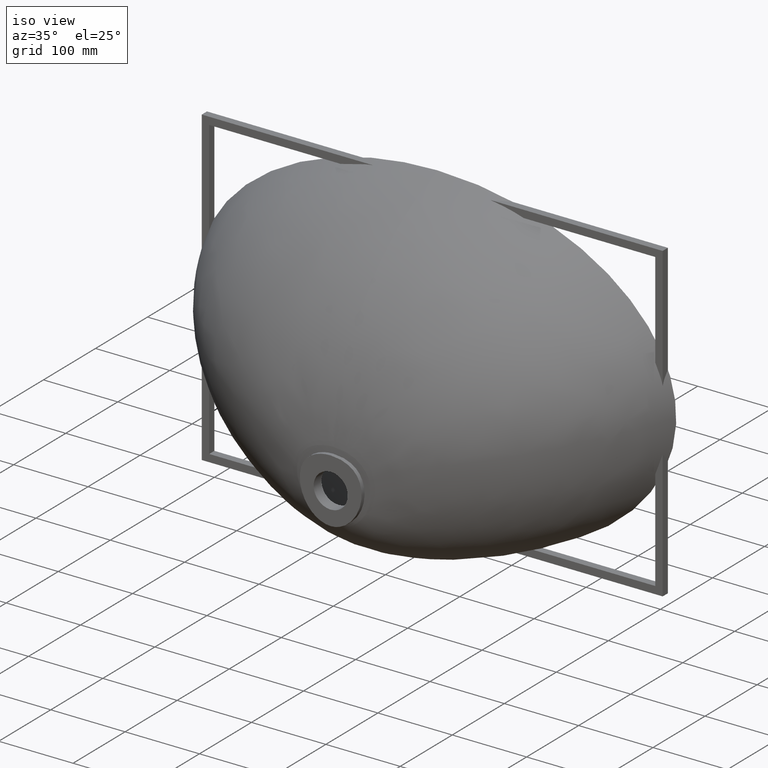
[diagram: clean part render]
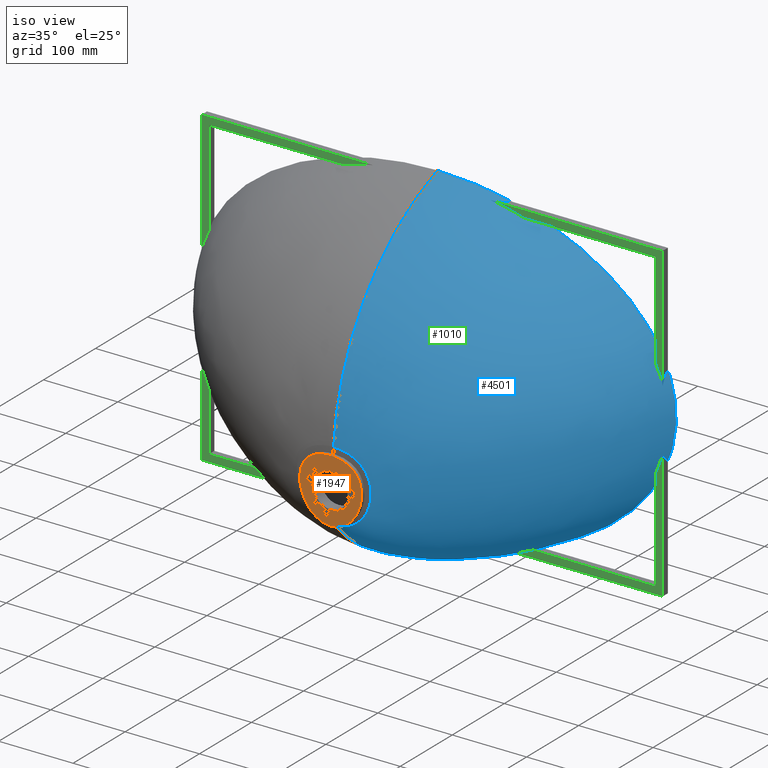
[diagram: same view with three faces highlighted in distinct colors, each labeled with its STEP entity id]
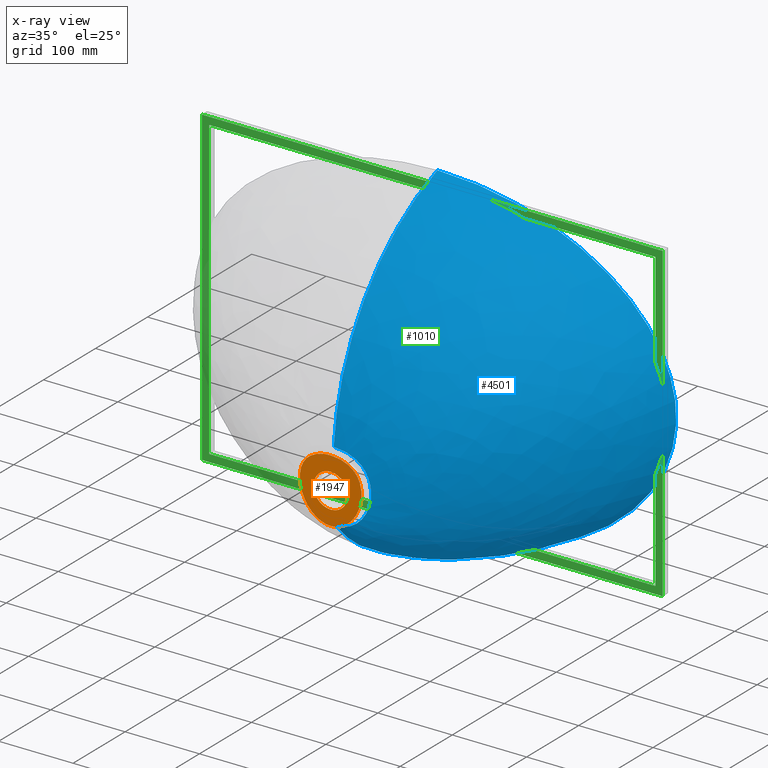
[diagram: x-ray of the same camera — body ghosted, the three highlighted faces saturated]
A machine part, iso view with three faces highlighted in distinct colors.
The next image is the same camera in x-ray (body ghosted, the three faces saturated) — at least one of them is partly hidden behind the body in this view.
Their STEP definitions:

[orange] entity #1947 — the highlighted planar face has unit normal (-0, -1, 0).
#21 = CARTESIAN_POINT ( 'NONE',  ( 12.87884239488228900, -204.9999999999999400, -109.2264678997515700 ) ) ;
#37 = CARTESIAN_POINT ( 'NONE',  ( 36.73403254752861400, -204.9999999999996000, -106.5386964606676100 ) ) ;
#185 = CARTESIAN_POINT ( 'NONE',  ( -3.780609362022576500E-005, -204.9999999999999700, -47.00009056093122700 ) ) ;
#267 = CARTESIAN_POINT ( 'NONE',  ( -19.69564731690707000, -205.0000000000000600, -77.85384602817559600 ) ) ;
#269 = AXIS2_PLACEMENT_3D ( 'NONE', #3300, #1518, #1507 ) ;
#280 = CARTESIAN_POINT ( 'NONE',  ( -22.12014269577989700, -205.0000000000001100, -51.53332781924049800 ) ) ;
#328 = CARTESIAN_POINT ( 'NONE',  ( 10.90520997549835500, -205.0000000000000600, -69.69727752242161500 ) ) ;
#399 = CARTESIAN_POINT ( 'NONE',  ( 8.544703741249479700, -204.9999999999998900, -132.0235805053606300 ) ) ;
#427 = CARTESIAN_POINT ( 'NONE',  ( -2.364192521994604900E-010, -204.9999999999999700, -67.00008094326567200 ) ) ;
#430 = CARTESIAN_POINT ( 'NONE',  ( 41.78149849393997800, -204.9999999999997200, -81.00191808907911200 ) ) ;
#526 = CARTESIAN_POINT ( 'NONE',  ( -3.804591195825937100, -204.9999999999999700, -132.9002450180099100 ) ) ;
#568 = VERTEX_POINT ( 'NONE', #3017 ) ;
#581 = CARTESIAN_POINT ( 'NONE',  ( -2.364192521994604900E-010, -204.9999999999999700, -67.00008094326567200 ) ) ;
#582 = B_SPLINE_CURVE_WITH_KNOTS ( 'NONE', 3,
 ( #581, #4343, #4256, #1323, #4409, #328, #3716, #4218, #3888, #3703, #2702, #4366, #4152, #679, #689, #2109, #932, #21, #2076, #1297, #3786, #4378, #646 ),
 .UNSPECIFIED., .F., .F.,
 ( 4, 1, 1, 1, 1, 1, 1, 1, 1, 1, 1, 1, 1, 1, 1, 1, 1, 1, 1, 1, 4 ),
 ( 0.5000000000000014400, 0.5156249999985558200, 0.5468749999986489700, 0.5781249999987421200, 0.5937499999987887500, 0.6249999999988818900, 0.6562499999989750400, 0.6718749999990216700, 0.7031249999991148200, 0.7421874999992312800, 0.7499999999992987800, 0.7968749999993943700, 0.8281249999994875200, 0.8437499999995341500, 0.8749999999996273000, 0.9062499999997204500, 0.9218749999997670800, 0.9531249999998602200, 0.9687499999999068500, 0.9937499999999813700, 1.000000000000000000 ),
 .UNSPECIFIED. ) ;
#618 = CARTESIAN_POINT ( 'NONE',  ( -32.70689224273541400, -204.9999999999997200, -113.9974058009108000 ) ) ;
#620 = CARTESIAN_POINT ( 'NONE',  ( -21.20102504724452400, -205.0000000000005100, -80.89095884342722800 ) ) ;
#633 = CARTESIAN_POINT ( 'NONE',  ( -16.76516682738181200, -204.9999999999999700, -49.42548855786213800 ) ) ;
#646 = CARTESIAN_POINT ( 'NONE',  ( -1.546703845729802100E-011, -204.9999999999999700, -112.9999999999999900 ) ) ;
#679 = CARTESIAN_POINT ( 'NONE',  ( 22.62562550273817400, -205.0000000000004500, -94.63752300915634000 ) ) ;
#689 = CARTESIAN_POINT ( 'NONE',  ( 21.34732884274000100, -204.9999999999995700, -98.81855738701614200 ) ) ;
#739 = VERTEX_POINT ( 'NONE', #1254 ) ;
#881 = CARTESIAN_POINT ( 'NONE',  ( 11.07264347974548200, -204.9999999999999700, -47.89675825680083000 ) ) ;
#932 = CARTESIAN_POINT ( 'NONE',  ( 16.44496563931929200, -204.9999999999997400, -106.3004572330870000 ) ) ;
#959 = CARTESIAN_POINT ( 'NONE',  ( -2.364192521994604900E-010, -204.9999999999999700, -67.00008094326567200 ) ) ;
#971 = CARTESIAN_POINT ( 'NONE',  ( -21.13778786437391200, -205.0000000000000600, -125.9536427692692700 ) ) ;
#973 = CARTESIAN_POINT ( 'NONE',  ( -23.29668560311622400, -204.9999999999995200, -89.56888395515262900 ) ) ;
#1123 = CARTESIAN_POINT ( 'NONE',  ( 0.6337411992883509300, -204.9999999999999700, -132.9999999999998000 ) ) ;
#1232 = ORIENTED_EDGE ( 'NONE', *, *, #3851, .F. ) ;
#1233 = CARTESIAN_POINT ( 'NONE',  ( 1.247241908732398500, -204.9999999999999700, -47.00008034164250900 ) ) ;
#1254 = CARTESIAN_POINT ( 'NONE',  ( -1.546703845729802100E-011, -204.9999999999999700, -112.9999999999999900 ) ) ;
#1297 = CARTESIAN_POINT ( 'NONE',  ( 5.258631047841656200, -204.9999999999998900, -112.4802060120196600 ) ) ;
#1308 = CARTESIAN_POINT ( 'NONE',  ( -3.088087887829881400, -205.0000000000002000, -67.16151341405336000 ) ) ;
#1317 = CARTESIAN_POINT ( 'NONE',  ( -38.32929266924441700, -205.0000000000000600, -67.06747150164517300 ) ) ;
#1319 = CARTESIAN_POINT ( 'NONE',  ( -21.34732884353473300, -205.0000000000002600, -98.81855738510083100 ) ) ;
#1323 = CARTESIAN_POINT ( 'NONE',  ( 5.457037234952512300, -204.9999999999999700, -67.58134963084521000 ) ) ;
#1436 = EDGE_CURVE ( 'NONE', #739, #2074, #1934, .T. ) ;
#1451 = ORIENTED_EDGE ( 'NONE', *, *, #4044, .T. ) ;
#1507 = DIRECTION ( 'NONE',  ( -4.068333126980279600E-014, 0.0000000000000000000, 1.000000000000000000 ) ) ;
#1518 = DIRECTION ( 'NONE',  ( -0.0000000000000000000, -1.000000000000000000, 0.0000000000000000000 ) ) ;
#1569 = CARTESIAN_POINT ( 'NONE',  ( 4.988967635881910400, -205.0000000000000600, -47.11936653657056700 ) ) ;
#1657 = CARTESIAN_POINT ( 'NONE',  ( -15.52357937130365600, -204.9999999999998600, -129.3986235128473900 ) ) ;
#1659 = CARTESIAN_POINT ( 'NONE',  ( -8.252366770323615000, -204.9999999999999700, -68.49788846994752600 ) ) ;
#1671 = CARTESIAN_POINT ( 'NONE',  ( -40.35085624216450400, -205.0000000000004800, -72.92821785256491300 ) ) ;
#1673 = CARTESIAN_POINT ( 'NONE',  ( -16.44496564035722100, -205.0000000000003400, -106.3004572320673700 ) ) ;
#1746 = B_SPLINE_CURVE_WITH_KNOTS ( 'NONE', 3,
 ( #4136, #3664, #526, #2014, #1657, #971, #2357, #618, #3409, #3071, #4110, #3757, #1671, #1317, #2374, #2028, #2723, #280, #633, #4468, #3086, #3426, #4125 ),
 .UNSPECIFIED., .F., .F.,
 ( 4, 1, 1, 1, 1, 1, 1, 1, 1, 1, 1, 1, 1, 1, 1, 1, 1, 1, 1, 1, 4 ),
 ( 0.0000000000000000000, 0.006249999999981435300, 0.03124999999990673400, 0.04687499999986010500, 0.07812499999976683900, 0.09374999999972021000, 0.1249999999996269400, 0.1562499999995336800, 0.1718749999994870500, 0.2031249999993937600, 0.2499999999994795800, 0.2578124999992305600, 0.2968749999991139900, 0.3281249999990207300, 0.3437499999989741000, 0.3749999999988808400, 0.4062499999987875300, 0.4218749999987409000, 0.4531249999986476400, 0.4687499999986010100, 0.5000000000000000000 ),
 .UNSPECIFIED. ) ;
#1797 = CARTESIAN_POINT ( 'NONE',  ( 40.35085624303584200, -205.0000000000003700, -72.92821785460854800 ) ) ;
#1901 = CARTESIAN_POINT ( 'NONE',  ( -1.465337183190196200E-011, -204.9999999999999700, -133.0000000000000600 ) ) ;
#1918 = CARTESIAN_POINT ( 'NONE',  ( 16.76516682747362100, -204.9999999999998600, -49.42548855793019400 ) ) ;
#1926 = FACE_OUTER_BOUND ( 'NONE', #2861, .T. ) ;
#1934 = B_SPLINE_CURVE_WITH_KNOTS ( 'NONE', 3,
 ( #2725, #2497, #2376, #4113, #2030, #3759, #1673, #3411, #1319, #3073, #973, #2712, #620, #267, #2359, #4453, #2016, #4099, #1659, #3742, #1308, #3396, #959 ),
 .UNSPECIFIED., .F., .F.,
 ( 4, 1, 1, 1, 1, 1, 1, 1, 1, 1, 1, 1, 1, 1, 1, 1, 1, 1, 1, 1, 4 ),
 ( 0.0000000000000000000, 0.006249999999981453600, 0.03124999999990682500, 0.04687499999986024400, 0.07812499999976706100, 0.09374999999972048700, 0.1249999999996273000, 0.1562499999995341200, 0.1718749999994875500, 0.2031249999993943500, 0.2499999999994803000, 0.2578124999992312800, 0.2968749999991148200, 0.3281249999990216700, 0.3437499999989751000, 0.3749999999988819500, 0.4062499999987886900, 0.4218749999987421200, 0.4531249999986489700, 0.4687499999986023400, 0.5000000000000014400 ),
 .UNSPECIFIED. ) ;
#1947 = ADVANCED_FACE ( 'NONE', ( #2406, #1926 ), #4066, .T. ) ;
#1983 = ORIENTED_EDGE ( 'NONE', *, *, #1436, .T. ) ;
#2014 = CARTESIAN_POINT ( 'NONE',  ( -8.544703741655677500, -205.0000000000000000, -132.0235805052882100 ) ) ;
#2016 = CARTESIAN_POINT ( 'NONE',  ( -13.37837932369519600, -204.9999999999997400, -71.16966715876097300 ) ) ;
#2028 = CARTESIAN_POINT ( 'NONE',  ( -31.31551974112776200, -205.0000000000002000, -57.71825116594632700 ) ) ;
#2030 = CARTESIAN_POINT ( 'NONE',  ( -9.520854747724390800, -204.9999999999998600, -111.0733907247486800 ) ) ;
#2074 = VERTEX_POINT ( 'NONE', #427 ) ;
#2076 = CARTESIAN_POINT ( 'NONE',  ( 9.520854746973750300, -205.0000000000000600, -111.0733907250592000 ) ) ;
#2109 = CARTESIAN_POINT ( 'NONE',  ( 19.35287483796040000, -205.0000000000005100, -102.8320352463276100 ) ) ;
#2112 = CARTESIAN_POINT ( 'NONE',  ( -1.465337183190196200E-011, -204.9999999999999700, -133.0000000000000600 ) ) ;
#2154 = CARTESIAN_POINT ( 'NONE',  ( 21.13778786348720100, -204.9999999999999400, -125.9536427698176100 ) ) ;
#2254 = CARTESIAN_POINT ( 'NONE',  ( 34.98148047931962900, -205.0000000000000900, -61.83303117012003700 ) ) ;
#2268 = CARTESIAN_POINT ( 'NONE',  ( 27.06037137243599500, -204.9999999999999700, -54.22393714079819200 ) ) ;
#2357 = CARTESIAN_POINT ( 'NONE',  ( -27.35593971980295400, -205.0000000000003100, -120.4836663508699700 ) ) ;
#2359 = CARTESIAN_POINT ( 'NONE',  ( -17.66066059859467400, -205.0000000000000000, -75.14751129909535600 ) ) ;
#2363 = VERTEX_POINT ( 'NONE', #2112 ) ;
#2374 = CARTESIAN_POINT ( 'NONE',  ( -34.98148047836000500, -205.0000000000000000, -61.83303116896088600 ) ) ;
#2376 = CARTESIAN_POINT ( 'NONE',  ( -2.340482425621977400, -204.9999999999999700, -112.9470050368052700 ) ) ;
#2406 = FACE_BOUND ( 'NONE', #2914, .T. ) ;
#2493 = ORIENTED_EDGE ( 'NONE', *, *, #4395, .F. ) ;
#2497 = CARTESIAN_POINT ( 'NONE',  ( -0.3897112397561129900, -204.9999999999999700, -112.9999999999999900 ) ) ;
#2498 = CARTESIAN_POINT ( 'NONE',  ( 32.70689224179415100, -205.0000000000004800, -113.9974058022885000 ) ) ;
#2702 = CARTESIAN_POINT ( 'NONE',  ( 21.20102504817047200, -205.0000000000004000, -80.89095884559726800 ) ) ;
#2712 = CARTESIAN_POINT ( 'NONE',  ( -22.60431641337840600, -204.9999999999995700, -85.17638183404884000 ) ) ;
#2723 = CARTESIAN_POINT ( 'NONE',  ( -27.06037137180688400, -204.9999999999997400, -54.22393714033517400 ) ) ;
#2725 = CARTESIAN_POINT ( 'NONE',  ( -1.546703845729802100E-011, -204.9999999999999700, -112.9999999999999900 ) ) ;
#2848 = CARTESIAN_POINT ( 'NONE',  ( 27.35593971882713800, -204.9999999999997700, -120.4836663518127000 ) ) ;
#2861 = EDGE_LOOP ( 'NONE', ( #2493, #1232 ) ) ;
#2914 = EDGE_LOOP ( 'NONE', ( #1983, #1451 ) ) ;
#2953 = CARTESIAN_POINT ( 'NONE',  ( 15.52357937059600700, -205.0000000000000600, -129.3986235131288800 ) ) ;
#3017 = CARTESIAN_POINT ( 'NONE',  ( -3.780609362022576500E-005, -204.9999999999999700, -47.00009056093122700 ) ) ;
#3071 = CARTESIAN_POINT ( 'NONE',  ( -39.67402214821946400, -205.0000000000001700, -98.76340096858912400 ) ) ;
#3073 = CARTESIAN_POINT ( 'NONE',  ( -22.62562550321271000, -205.0000000000001700, -94.63752300693714400 ) ) ;
#3086 = CARTESIAN_POINT ( 'NONE',  ( -6.236663214881585500, -205.0000000000002000, -47.23877536296207300 ) ) ;
#3212 = CARTESIAN_POINT ( 'NONE',  ( 41.86224376083926300, -204.9999999999984100, -89.29882669064377900 ) ) ;
#3300 = CARTESIAN_POINT ( 'NONE',  ( -1.465337183190196200E-011, -204.9999999999999700, -133.0000000000000600 ) ) ;
#3396 = CARTESIAN_POINT ( 'NONE',  ( -1.235235155290639800, -204.9999999999999700, -67.00008094328023800 ) ) ;
#3409 = CARTESIAN_POINT ( 'NONE',  ( -36.73403254827146500, -205.0000000000002600, -106.5386964588840800 ) ) ;
#3411 = CARTESIAN_POINT ( 'NONE',  ( -19.35287483896364000, -204.9999999999996900, -102.8320352448438500 ) ) ;
#3426 = CARTESIAN_POINT ( 'NONE',  ( -2.494597235745657400, -204.9999999999999700, -47.00011099950868500 ) ) ;
#3664 = CARTESIAN_POINT ( 'NONE',  ( -0.6337411993176690400, -204.9999999999999700, -133.0000000000003400 ) ) ;
#3703 = CARTESIAN_POINT ( 'NONE',  ( 19.69564731798465100, -204.9999999999997400, -77.85384602989435600 ) ) ;
#3716 = CARTESIAN_POINT ( 'NONE',  ( 13.37837932440530500, -204.9999999999999700, -71.16966715923197700 ) ) ;
#3742 = CARTESIAN_POINT ( 'NONE',  ( -6.016103142120069700, -204.9999999999999400, -67.76465739870130300 ) ) ;
#3757 = CARTESIAN_POINT ( 'NONE',  ( -41.78149849344013200, -204.9999999999996000, -81.00191808683074200 ) ) ;
#3759 = CARTESIAN_POINT ( 'NONE',  ( -12.87884239582399300, -205.0000000000000600, -109.2264678991540200 ) ) ;
#3786 = CARTESIAN_POINT ( 'NONE',  ( 2.340482425541508000, -204.9999999999999400, -112.9470050368137400 ) ) ;
#3851 = EDGE_CURVE ( 'NONE', #568, #2363, #4512, .T. ) ;
#3888 = CARTESIAN_POINT ( 'NONE',  ( 17.66066059963372600, -205.0000000000000900, -75.14751130031626800 ) ) ;
#3891 = CARTESIAN_POINT ( 'NONE',  ( 38.32929267025086500, -204.9999999999997400, -67.06747150326617700 ) ) ;
#3902 = CARTESIAN_POINT ( 'NONE',  ( 3.804591195749862800, -204.9999999999999400, -132.9002450180149400 ) ) ;
#4004 = CARTESIAN_POINT ( 'NONE',  ( 31.31551974195852800, -204.9999999999997700, -57.71825116673120700 ) ) ;
#4044 = EDGE_CURVE ( 'NONE', #2074, #739, #582, .T. ) ;
#4066 = PLANE ( 'NONE',  #269 ) ;
#4099 = CARTESIAN_POINT ( 'NONE',  ( -10.90520997505399400, -205.0000000000001100, -69.69727752220023800 ) ) ;
#4110 = CARTESIAN_POINT ( 'NONE',  ( -41.86224376081057800, -204.9999999999995500, -89.29882668836299300 ) ) ;
#4113 = CARTESIAN_POINT ( 'NONE',  ( -5.258631048271918300, -205.0000000000000000, -112.4802060119359500 ) ) ;
#4125 = CARTESIAN_POINT ( 'NONE',  ( -3.780609362022576500E-005, -204.9999999999999700, -47.00009056093122700 ) ) ;
#4136 = CARTESIAN_POINT ( 'NONE',  ( -1.465337183190196200E-011, -204.9999999999999700, -133.0000000000000600 ) ) ;
#4152 = CARTESIAN_POINT ( 'NONE',  ( 23.29668560314019000, -204.9999999999983200, -89.56888395758468800 ) ) ;
#4218 = CARTESIAN_POINT ( 'NONE',  ( 15.61424723290422800, -204.9999999999997700, -73.00879840275595700 ) ) ;
#4235 = CARTESIAN_POINT ( 'NONE',  ( 39.67402214777904100, -205.0000000000004300, -98.76340097065950400 ) ) ;
#4256 = CARTESIAN_POINT ( 'NONE',  ( 2.470470309893233500, -205.0000000000000600, -67.08079717861357900 ) ) ;
#4343 = CARTESIAN_POINT ( 'NONE',  ( 0.6176175772906051800, -204.9999999999999700, -67.00008094325841100 ) ) ;
#4358 = CARTESIAN_POINT ( 'NONE',  ( 22.12014269614877500, -205.0000000000000600, -51.53332781947057800 ) ) ;
#4366 = CARTESIAN_POINT ( 'NONE',  ( 22.60431641390433900, -204.9999999999996900, -85.17638183644224600 ) ) ;
#4378 = CARTESIAN_POINT ( 'NONE',  ( 0.3897112397251720800, -204.9999999999999700, -112.9999999999999900 ) ) ;
#4395 = EDGE_CURVE ( 'NONE', #2363, #568, #1746, .T. ) ;
#4409 = CARTESIAN_POINT ( 'NONE',  ( 8.252366770483332600, -204.9999999999998600, -68.49788846999723500 ) ) ;
#4453 = CARTESIAN_POINT ( 'NONE',  ( -15.61424723199113300, -205.0000000000002000, -73.00879840193836400 ) ) ;
#4468 = CARTESIAN_POINT ( 'NONE',  ( -12.21114814941346600, -204.9999999999999400, -48.20250431703209400 ) ) ;
#4512 = B_SPLINE_CURVE_WITH_KNOTS ( 'NONE', 3,
 ( #185, #1233, #1569, #881, #1918, #4358, #2268, #4004, #2254, #3891, #1797, #430, #3212, #4235, #37, #2498, #2848, #2154, #2953, #399, #3902, #1123, #1901 ),
 .UNSPECIFIED., .F., .F.,
 ( 4, 1, 1, 1, 1, 1, 1, 1, 1, 1, 1, 1, 1, 1, 1, 1, 1, 1, 1, 1, 4 ),
 ( 0.5000000000000000000, 0.5156249999985543800, 0.5468749999986476400, 0.5781249999987409000, 0.5937499999987875300, 0.6249999999988807800, 0.6562499999989740400, 0.6718749999990206700, 0.7031249999991140400, 0.7421874999992306200, 0.7499999999992981200, 0.7968749999993938200, 0.8281249999994870800, 0.8437499999995337100, 0.8749999999996269700, 0.9062499999997202200, 0.9218749999997668500, 0.9531249999998601100, 0.9687499999999067400, 0.9937499999999813700, 1.000000000000000000 ),
 .UNSPECIFIED. ) ;

[blue] entity #4501 — the highlighted face is a freeform B-spline surface patch.
#6 = ORIENTED_EDGE ( 'NONE', *, *, #1337, .F. ) ;
#7 = CARTESIAN_POINT ( 'NONE',  ( -125.2115770445408300, -143.7223968875574900, -141.6782537835259700 ) ) ;
#11 = CARTESIAN_POINT ( 'NONE',  ( 31.29291648310420700, -132.6310692316886800, -187.0422131443368700 ) ) ;
#12 = CARTESIAN_POINT ( 'NONE',  ( 92.12791132418898600, -140.2258756101661300, 107.2623263497128800 ) ) ;
#24 = CARTESIAN_POINT ( 'NONE',  ( 143.3384955013445100, -147.8655690421231300, -121.8964324890985700 ) ) ;
#45 = CARTESIAN_POINT ( 'NONE',  ( -172.5549585363722300, -112.5612111858884700, 106.0689790210829000 ) ) ;
#51 = CARTESIAN_POINT ( 'NONE',  ( -78.06544962423004100, -110.8509050660565500, 145.7101562635554600 ) ) ;
#63 = CARTESIAN_POINT ( 'NONE',  ( -109.0154831590001100, -85.86487617880234800, -189.7353420480018500 ) ) ;
#86 = CARTESIAN_POINT ( 'NONE',  ( 0.7395005772561407100, -194.7268885781961400, -136.5573826692653700 ) ) ;
#87 = CARTESIAN_POINT ( 'NONE',  ( 3.615438119637182500, -54.76709173983680800, -217.3235181204273700 ) ) ;
#97 = CARTESIAN_POINT ( 'NONE',  ( 142.0556307888205900, 9.327446425774334400E-014, -196.5135697462502500 ) ) ;
#116 = CARTESIAN_POINT ( 'NONE',  ( 300.1807100144061500, -40.78546593436400500, 24.50674240078672400 ) ) ;
#124 = CARTESIAN_POINT ( 'NONE',  ( -6.272744014388536600E-005, -199.1722690583723100, -38.78733995745589200 ) ) ;
#154 = CARTESIAN_POINT ( 'NONE',  ( 1.286480905353186900, -176.1461070737293800, -156.7851833740674900 ) ) ;
#169 = CARTESIAN_POINT ( 'NONE',  ( 261.5491677903448200, 4.755972683741357100E-014, 132.5977633600815300 ) ) ;
#198 = CARTESIAN_POINT ( 'NONE',  ( 103.4425654388036500, 8.681087635249622700E-014, -208.2346759364824000 ) ) ;
#211 = CARTESIAN_POINT ( 'NONE',  ( 320.4813010082536400, 2.708718828605042700E-014, 31.59017061801559800 ) ) ;
#215 = CARTESIAN_POINT ( 'NONE',  ( 186.7491606980555600, 2.125024848000798700E-014, 182.1903061432608700 ) ) ;
#228 = CARTESIAN_POINT ( 'NONE',  ( 22.38745999638325300, -162.9736072990199900, 84.60820933725813100 ) ) ;
#233 = CARTESIAN_POINT ( 'NONE',  ( -46.99792253703969900, -197.4647734999877300, -98.95472414751228000 ) ) ;
#235 = CARTESIAN_POINT ( 'NONE',  ( 118.9612072010175400, -183.0215631564307200, -4.853351932495272100 ) ) ;
#250 = CARTESIAN_POINT ( 'NONE',  ( 68.43789416645090300, -182.6981378891917100, -125.9277207322176700 ) ) ;
#256 = CARTESIAN_POINT ( 'NONE',  ( -315.9968406765682400, -13.49394887284046800, -13.23713632779863600 ) ) ;
#268 = CARTESIAN_POINT ( 'NONE',  ( 48.57892849106341500, -199.0158680622940300, -69.77863534667692100 ) ) ;
#284 = CARTESIAN_POINT ( 'NONE',  ( -256.3474724616435800, -14.13571207449413200, 129.1025953931494400 ) ) ;
#295 = CARTESIAN_POINT ( 'NONE',  ( 13.54265580840523400, -199.2278264057125900, -39.87861590375081300 ) ) ;
#297 = CARTESIAN_POINT ( 'NONE',  ( 24.77644123662342300, -9.144881304556165000, -220.2314242294875700 ) ) ;
#308 = CARTESIAN_POINT ( 'NONE',  ( -85.29797992344353500, -187.3168800469098600, -100.1869427511446600 ) ) ;
#309 = CARTESIAN_POINT ( 'NONE',  ( -103.4425654388303100, 9.491743668828565400E-014, -208.2346759364781700 ) ) ;
#317 = CARTESIAN_POINT ( 'NONE',  ( -43.50246441399337300, -82.14924412604469200, -208.1333755396675500 ) ) ;
#321 = CARTESIAN_POINT ( 'NONE',  ( 80.28892046305367100, -161.6412648461765100, -148.4250837835572600 ) ) ;
#323 = CARTESIAN_POINT ( 'NONE',  ( 79.38783039490482500, -83.77853352446577200, -200.2724516518029000 ) ) ;
#336 = CARTESIAN_POINT ( 'NONE',  ( -31.58194155094289000, -177.4631747173335200, -151.0680044676046500 ) ) ;
#341 = CARTESIAN_POINT ( 'NONE',  ( 139.9559428333994900, -165.3220627195544800, 36.15607794756216000 ) ) ;
#342 = CARTESIAN_POINT ( 'NONE',  ( 93.60132262826411400, 1.908531697946425700E-014, 213.3774224310046700 ) ) ;
#347 = CARTESIAN_POINT ( 'NONE',  ( -206.5790342177863000, -132.9875235569262200, -69.19698583116127100 ) ) ;
#351 = CARTESIAN_POINT ( 'NONE',  ( -63.64308111231592600, -194.9066095563451900, -13.09503115575171800 ) ) ;
#354 = CARTESIAN_POINT ( 'NONE',  ( -128.7266883150549000, -182.4258421620942000, -20.87886075946669400 ) ) ;
#355 = CARTESIAN_POINT ( 'NONE',  ( 141.3670310162261500, -111.9896509098843500, 123.4589904437972900 ) ) ;
#366 = CARTESIAN_POINT ( 'NONE',  ( 57.08791706724453300, -134.3391171472503100, -180.6878154809575400 ) ) ;
#367 = CARTESIAN_POINT ( 'NONE',  ( 143.4575918493063100, -89.05907889750494600, -172.4188182551285700 ) ) ;
#377 = CARTESIAN_POINT ( 'NONE',  ( -6.818611090765496200, -138.9993377800811900, 121.9525677460366500 ) ) ;
#380 = CARTESIAN_POINT ( 'NONE',  ( 102.9333279113057100, -139.8812401946412600, -158.4082644938344200 ) ) ;
#389 = CARTESIAN_POINT ( 'NONE',  ( -141.3670310167125300, -111.9896509099535100, 123.4589904438229400 ) ) ;
#394 = CARTESIAN_POINT ( 'NONE',  ( 4.439100669254775000, -194.7360925572337500, -136.4496149541205900 ) ) ;
#395 = CARTESIAN_POINT ( 'NONE',  ( -293.7135556235581900, -38.17270382108247200, -55.50707117337485400 ) ) ;
#410 = CARTESIAN_POINT ( 'NONE',  ( -49.91101741986343400, -198.6446360610974900, -41.53401412522744400 ) ) ;
#411 = CARTESIAN_POINT ( 'NONE',  ( -268.6811311815512200, -73.24649925519689500, -59.84660510616628000 ) ) ;
#413 = CARTESIAN_POINT ( 'NONE',  ( -1.411349336011280500E-011, -194.7268885781960800, -136.5573826692656500 ) ) ;
#437 = CARTESIAN_POINT ( 'NONE',  ( -198.3136696694768100, -112.8524466205919500, 84.67144598997693100 ) ) ;
#444 = CARTESIAN_POINT ( 'NONE',  ( -0.0005022607359886278200, -77.02896944919315600, 181.9708290046571100 ) ) ;
#447 = CARTESIAN_POINT ( 'NONE',  ( -0.0006487715735293528300, 1.733652424677053100E-014, 221.3074660610588500 ) ) ;
#467 = CARTESIAN_POINT ( 'NONE',  ( 186.7491606980555600, 2.125024848000798700E-014, 182.1903061432608700 ) ) ;
#474 = CARTESIAN_POINT ( 'NONE',  ( -283.5348214729774600, -12.23903002233964300, -93.07349089458429600 ) ) ;
#498 = CARTESIAN_POINT ( 'NONE',  ( -124.1066550629737000, -115.5744267119337100, -166.4422374912555800 ) ) ;
#507 = CARTESIAN_POINT ( 'NONE',  ( -283.0688495965453100, -14.14977798399242000, 99.47534738535490800 ) ) ;
#515 = CARTESIAN_POINT ( 'NONE',  ( -210.2144456043182000, -139.4492311718019000, -8.461856488913719300 ) ) ;
#521 = CARTESIAN_POINT ( 'NONE',  ( 55.47912159005645100, -198.5632984292792300, -47.86910341669054200 ) ) ;
#522 = CARTESIAN_POINT ( 'NONE',  ( -236.6055459835183100, -112.2453912980271400, 32.60510348173040300 ) ) ;
#530 = CARTESIAN_POINT ( 'NONE',  ( 190.8998955370248600, -128.0971440337791600, -100.0843678384643300 ) ) ;
#537 = CARTESIAN_POINT ( 'NONE',  ( -23.68548094885009500, -27.49182123793704900, -220.2074528251776500 ) ) ;
#548 = CARTESIAN_POINT ( 'NONE',  ( -143.4575918496317400, -89.05907889746221400, -172.4188182547892700 ) ) ;
#553 = CARTESIAN_POINT ( 'NONE',  ( 194.2470126285080900, -78.97491938623007000, 128.3501423741082000 ) ) ;
#556 = CARTESIAN_POINT ( 'NONE',  ( 187.0728004054444400, 1.002927147227052500E-013, -176.9853294243066600 ) ) ;
#557 = CARTESIAN_POINT ( 'NONE',  ( 56.54944675471345800, -180.5536329865822700, -136.6276323368169600 ) ) ;
#562 = CARTESIAN_POINT ( 'NONE',  ( 183.5158400976216900, -10.36908859553679500, -177.5374355456576400 ) ) ;
#571 = CARTESIAN_POINT ( 'NONE',  ( 93.60132262826411400, 1.908531697946425700E-014, 213.3774224310046700 ) ) ;
#580 = CARTESIAN_POINT ( 'NONE',  ( -0.0001359830379191916900, -193.8035576205662700, 4.247335933694977000 ) ) ;
#597 = CARTESIAN_POINT ( 'NONE',  ( 187.0728004054444400, 1.002927147227052500E-013, -176.9853294243066600 ) ) ;
#601 = CARTESIAN_POINT ( 'NONE',  ( 91.59806895533384400, -193.5507029246462000, -53.29292522318331000 ) ) ;
#623 = CARTESIAN_POINT ( 'NONE',  ( -39.70246603707904900, -110.3764407193214200, 152.3203553940538500 ) ) ;
#627 = CARTESIAN_POINT ( 'NONE',  ( 228.1687546162680500, 4.994668373597370300E-014, -152.9046759833381900 ) ) ;
#631 = CARTESIAN_POINT ( 'NONE',  ( 27.02468223598106400, -199.3555391043096600, -44.31731695878527700 ) ) ;
#650 = CARTESIAN_POINT ( 'NONE',  ( -56.69216724763666100, 8.965083829889200300E-014, -216.9020447180126000 ) ) ;
#657 = CARTESIAN_POINT ( 'NONE',  ( -270.1696131319766900, -41.55542081201809900, 92.20304764517949500 ) ) ;
#660 = CARTESIAN_POINT ( 'NONE',  ( -68.43789416722852100, -182.6981378891625500, -125.9277207310660600 ) ) ;
#661 = CARTESIAN_POINT ( 'NONE',  ( -320.4813010082367000, 2.222381412898955300E-014, 31.59017061810773800 ) ) ;
#665 = CARTESIAN_POINT ( 'NONE',  ( 70.76440136786781900, -110.7252782406415000, 147.7825758607351600 ) ) ;
#670 = CARTESIAN_POINT ( 'NONE',  ( 23.68548094883635700, -27.49182123793990900, -220.2074528251740700 ) ) ;
#674 = CARTESIAN_POINT ( 'NONE',  ( 61.20029246445226800, -158.8238103060154700, -159.9434274635864600 ) ) ;
#675 = CARTESIAN_POINT ( 'NONE',  ( -9.393744462848907500E-012, -131.9743233008848600, -189.3740198444972100 ) ) ;
#698 = CARTESIAN_POINT ( 'NONE',  ( -39.52097721607459800, -194.3616688553269700, -1.654282692667009300 ) ) ;
#703 = CARTESIAN_POINT ( 'NONE',  ( -93.33611223956114600, -183.0384001838396800, 20.09048681822759600 ) ) ;
#717 = CARTESIAN_POINT ( 'NONE',  ( 59.81612746444754000, -194.6072756003777600, -99.42917270197621300 ) ) ;
#721 = CARTESIAN_POINT ( 'NONE',  ( 2.322979103304044100, -131.9743233008853700, -189.3740198444966700 ) ) ;
#722 = CARTESIAN_POINT ( 'NONE',  ( -213.9466181687223000, -32.58154688386400000, -154.2579004033191800 ) ) ;
#727 = CARTESIAN_POINT ( 'NONE',  ( -75.60914022545404100, -163.9883605557563200, 73.56630774353826000 ) ) ;
#731 = CARTESIAN_POINT ( 'NONE',  ( 7.720845087619639300, -176.1838240905680400, -156.6280145181885100 ) ) ;
#733 = CARTESIAN_POINT ( 'NONE',  ( -103.2381490970990100, 2.132497335907396700E-014, 210.7208023381491600 ) ) ;
#747 = CARTESIAN_POINT ( 'NONE',  ( -37.66963018731313200, -108.0542699897809900, -199.0103345706348000 ) ) ;
#762 = CARTESIAN_POINT ( 'NONE',  ( -43.27549951347161500, -198.6172603574332800, -36.03452025981739800 ) ) ;
#772 = CARTESIAN_POINT ( 'NONE',  ( 2.796525344379032300, -107.3725712055297900, -201.6442419582468500 ) ) ;
#794 = CARTESIAN_POINT ( 'NONE',  ( 32.06011161139271300, -195.8044441504254700, -122.9297186953513300 ) ) ;
#795 = CARTESIAN_POINT ( 'NONE',  ( -6.272744014388536600E-005, -199.1722690583723100, -38.78733995745589200 ) ) ;
#802 = CARTESIAN_POINT ( 'NONE',  ( -55.61138953909956900, -9.237214443309161600, -217.4106721902240100 ) ) ;
#812 = CARTESIAN_POINT ( 'NONE',  ( -1.254042442805358700E-011, -176.1461070737291000, -156.7851833740678800 ) ) ;
#813 = CARTESIAN_POINT ( 'NONE',  ( -157.8162399964386400, -151.9742431760977900, -100.7031653882236100 ) ) ;
#828 = CARTESIAN_POINT ( 'NONE',  ( 42.48496057142445200, -199.3607890514715000, -56.75385969064069500 ) ) ;
#833 = CARTESIAN_POINT ( 'NONE',  ( -24.77644123663162300, -9.144881304555140000, -220.2314242294909800 ) ) ;
#844 = CARTESIAN_POINT ( 'NONE',  ( 97.01667930952191900, -28.49613209918046400, -208.7803543662182900 ) ) ;
#852 = CARTESIAN_POINT ( 'NONE',  ( -186.7491606985207400, 1.314410326570079300E-014, 182.1903061432327600 ) ) ;
#858 = CARTESIAN_POINT ( 'NONE',  ( -30.90409457923022200, -190.1183326319818700, -134.6436988423395200 ) ) ;
#862 = VERTEX_POINT ( 'NONE', #2331 ) ;
#873 = CARTESIAN_POINT ( 'NONE',  ( 43.27549951402061600, -198.6172603574162800, -36.03452026024508100 ) ) ;
#876 = CARTESIAN_POINT ( 'NONE',  ( -139.9559428331742800, -165.3220627196046700, 36.15607794799927200 ) ) ;
#884 = CARTESIAN_POINT ( 'NONE',  ( -51.45387020681895500, -13.64139400943055600, 214.4129341198500100 ) ) ;
#901 = CARTESIAN_POINT ( 'NONE',  ( -174.7119629453812000, -160.2636643614686400, -48.80751505307590300 ) ) ;
#909 = CARTESIAN_POINT ( 'NONE',  ( 261.8840565633610100, 1.026343022257116000E-013, -123.7872414932501200 ) ) ;
#910 = CARTESIAN_POINT ( 'NONE',  ( -57.97878725804935100, -182.1570641196775300, 37.01416742893835000 ) ) ;
#925 = CARTESIAN_POINT ( 'NONE',  ( -4.129233097099614700, -9.134252098736736200, -220.5493577342127500 ) ) ;
#926 = CARTESIAN_POINT ( 'NONE',  ( 128.7266883157196300, -182.4258421620872100, -20.87886076062169800 ) ) ;
#937 = CARTESIAN_POINT ( 'NONE',  ( -0.0003557497374847277300, -139.0514514588390100, 121.4813209719515900 ) ) ;
#948 = CARTESIAN_POINT ( 'NONE',  ( 151.1257916551773800, -119.5556589044300800, -147.2935035382693900 ) ) ;
#953 = CARTESIAN_POINT ( 'NONE',  ( -31.29291648335344400, -132.6310692316745300, -187.0422131443016800 ) ) ;
#957 = CARTESIAN_POINT ( 'NONE',  ( 91.55204310955313900, -189.9741937750592300, -83.75783380526273400 ) ) ;
#961 = CARTESIAN_POINT ( 'NONE',  ( 50.00177043729971900, -198.6206049880422000, -79.02379377750402500 ) ) ;
#962 = CARTESIAN_POINT ( 'NONE',  ( 48.69563576396286900, -55.26144569192382500, -214.2898856095867200 ) ) ;
#977 = CARTESIAN_POINT ( 'NONE',  ( -48.57892849022379500, -199.0158680622930100, -69.77863534471067900 ) ) ;
#982 = CARTESIAN_POINT ( 'NONE',  ( -3.079134169858832600E-012, -27.46214759433350500, -220.5243524227684600 ) ) ;
#985 = CARTESIAN_POINT ( 'NONE',  ( 64.42892329896484700, -197.0432047320304900, -75.56077687128525600 ) ) ;
#995 = CARTESIAN_POINT ( 'NONE',  ( -261.5491677906017600, 1.837701785896500800E-014, 132.5977633600806800 ) ) ;
#999 = CARTESIAN_POINT ( 'NONE',  ( 43.35538406619734500, -196.8984897291593900, -107.5756704706280300 ) ) ;
#1000 = CARTESIAN_POINT ( 'NONE',  ( 270.1696131318791500, -41.55542081200209700, 92.20304764504702200 ) ) ;
#1005 = B_SPLINE_SURFACE_WITH_KNOTS ( 'NONE', 3, 3, ( 
 ( #4423, #1332, #2058, #650, #309, #2742, #1346, #4502, #3791, #2408, #3102, #4143, #661, #3805, #2756, #995, #3573, #852, #3116, #733, #2987, #1243, #2660, #342, #3872, #467, #1965, #169, #1393, #3333, #211, #2608, #3517, #2288, #1933, #627, #597, #97, #1873, #3305, #1188, #3372, #2919 ),
 ( #3949, #925, #833, #802, #1278, #3454, #2211, #3764, #3147, #474, #1041, #256, #3107, #3067, #507, #284, #2760, #2825, #3481, #2810, #884, #3638, #2468, #3778, #2186, #3968, #2401, #2785, #2150, #4537, #1402, #4520, #3404, #1585, #4288, #2231, #562, #4544, #2473, #1237, #297, #3746, #1747 ),
 ( #2462, #1253, #537, #1602, #3824, #2615, #3317, #722, #1623, #2587, #395, #3541, #4443, #4324, #657, #2992, #1721, #1924, #2840, #2062, #3839, #3485, #2729, #3676, #3995, #4458, #2380, #1670, #1000, #3260, #116, #4188, #1752, #3326, #4121, #3834, #2369, #2735, #844, #4448, #670, #3910, #1275 ),
 ( #2276, #4074, #1428, #1990, #1341, #4210, #1481, #4164, #1060, #2333, #411, #1608, #2651, #2805, #3828, #1486, #1940, #2431, #1741, #1287, #3248, #1716, #3143, #1906, #1311, #3173, #553, #2087, #4303, #3462, #1434, #2800, #1468, #4357, #1072, #3731, #4480, #2749, #3037, #962, #3431, #87, #3090 ),
 ( #2143, #3501, #1861, #317, #1831, #63, #548, #1408, #3377, #3201, #1397, #1777, #2873, #522, #1143, #437, #45, #389, #1843, #51, #623, #4007, #4205, #665, #3845, #355, #1384, #4530, #2635, #2774, #1380, #1893, #3493, #1527, #4147, #4347, #367, #2128, #323, #3111, #1228, #2093, #1055 ),
 ( #3096, #2814, #2413, #747, #1082, #3155, #498, #3629, #4352, #3240, #347, #1633, #515, #2645, #3015, #2100, #3489, #3232, #1705, #2478, #1065, #377, #1446, #2388, #12, #3653, #4194, #4158, #3860, #2117, #1350, #1497, #2105, #530, #1564, #948, #2765, #3052, #1047, #2318, #3022, #772, #2264 ),
 ( #675, #2490, #2973, #953, #3358, #3466, #3121, #7, #1015, #813, #3669, #901, #2601, #4550, #1851, #876, #1588, #3159, #727, #3391, #3498, #3850, #228, #2440, #4536, #2091, #4177, #341, #1423, #3877, #2789, #2136, #4222, #1781, #24, #2485, #380, #2471, #366, #11, #2818, #721, #3172 ),
 ( #1076, #3505, #3158, #1058, #3492, #1767, #1407, #3859, #4209, #2122, #1751, #4193, #2108, #354, #4554, #2804, #703, #2456, #910, #3740, #1997, #1264, #3699, #3354, #1612, #4048, #1958, #4404, #235, #926, #1850, #1761, #1054, #1227, #3128, #1374, #321, #674, #1388, #2104, #3838, #1040, #4500 ),
 ( #2754, #1701, #2057, #3142, #336, #3657, #4529, #660, #3804, #308, #3450, #1361, #1715, #1009, #4156, #4549, #351, #1401, #698, #1776, #4217, #2830, #3475, #1728, #1023, #2769, #2425, #2070, #4516, #1292, #601, #3057, #957, #1306, #2343, #250, #557, #4438, #2684, #3614, #731, #154, #812 ),
 ( #3985, #2250, #3646, #3303, #1214, #858, #2607, #2964, #2619, #2263, #1913, #4351, #1563, #3425, #3954, #410, #762, #3180, #3886, #3461, #2086, #4172, #2436, #1071, #3871, #2132, #873, #4311, #521, #1183, #2373, #985, #3166, #717, #1417, #2784, #2407, #3821, #2149, #1792, #3516, #3269, #3316 ),
 ( #3627, #2979, #1242, #3588, #4130, #4106, #3694, #3244, #1171, #233, #2427, #2790, #977, #3167, #3510, #4506, #3115, #1460, #4214, #3218, #4187, #2453, #2897, #2292, #2561, #631, #4466, #3285, #828, #1882, #2949, #3960, #3613, #1504, #1166, #3221, #794, #3548, #2531, #3916, #394, #86, #3597 ) ),
 .UNSPECIFIED., .F., .T., .F.,
 ( 4, 1, 1, 1, 1, 1, 1, 1, 4 ),
 ( 4, 1, 1, 1, 1, 1, 1, 1, 1, 1, 1, 1, 1, 1, 1, 1, 1, 1, 1, 1, 1, 1, 1, 1, 1, 1, 1, 1, 1, 1, 1, 1, 1, 1, 1, 1, 1, 1, 1, 1, 4 ),
 ( 0.05841286551638181400, 0.1647314502849671300, 0.2710500350535525200, 0.3773686198221377100, 0.4836872045907231200, 0.5900057893593084700, 0.6963243741278936100, 0.8026429588964790800, 0.9089615436650644300 ),
 ( 0.0000000000000000000, 0.006250000000000088800, 0.03125000000000000000, 0.04687500000000000000, 0.07812500000000000000, 0.09375000000000000000, 0.1250000000000000000, 0.1562500000000000000, 0.1718750000000000000, 0.2031250000000000000, 0.2500000000002257100, 0.2578125000000000000, 0.2968750000000000000, 0.3281250000000000000, 0.3437500000000000000, 0.3750000000000000000, 0.4062500000000000000, 0.4218750000000000000, 0.4531250000000000000, 0.4687500000000000000, 0.5000000000014922500, 0.5156250000000000000, 0.5468750000000000000, 0.5781250000000000000, 0.5937500000000000000, 0.6250000000000000000, 0.6562500000000000000, 0.6718750000000000000, 0.7031250000000000000, 0.7421875000000000000, 0.7500000000000441900, 0.7968750000000000000, 0.8281250000000000000, 0.8437500000000000000, 0.8750000000000000000, 0.9062500000000000000, 0.9218750000000000000, 0.9531250000000000000, 0.9687500000000000000, 0.9937500000000000200, 1.000000000000000000 ),
 .UNSPECIFIED. ) ;
#1009 = CARTESIAN_POINT ( 'NONE',  ( -88.18540826016354100, -194.4268453870829800, -41.48083573509989500 ) ) ;
#1014 = CARTESIAN_POINT ( 'NONE',  ( 0.7395005772561407100, -194.7268885781961400, -136.5573826692653700 ) ) ;
#1015 = CARTESIAN_POINT ( 'NONE',  ( -143.3384955017334100, -147.8655690420687000, -121.8964324880312200 ) ) ;
#1023 = CARTESIAN_POINT ( 'NONE',  ( 39.52097721596703600, -194.3616688552903300, -1.654282692717595800 ) ) ;
#1040 = CARTESIAN_POINT ( 'NONE',  ( 1.816855305478373400, -155.0007534753683600, -174.3544558752375300 ) ) ;
#1041 = CARTESIAN_POINT ( 'NONE',  ( -307.3375238665808500, -12.96191445243658300, -52.82632609030664400 ) ) ;
#1047 = CARTESIAN_POINT ( 'NONE',  ( 68.73642991858142200, -109.8266599949339300, -191.8129921086628800 ) ) ;
#1054 = CARTESIAN_POINT ( 'NONE',  ( 131.9931309993478100, -175.8021910957074600, -78.93729261944839900 ) ) ;
#1055 = CARTESIAN_POINT ( 'NONE',  ( -6.225922555280760700E-012, -81.52236984692002900, -211.0022143134847000 ) ) ;
#1058 = CARTESIAN_POINT ( 'NONE',  ( -24.47716929974580300, -155.5519660426228900, -172.3881732990294300 ) ) ;
#1060 = CARTESIAN_POINT ( 'NONE',  ( -224.7236413938626600, -66.67755300404664400, -126.5086210697292400 ) ) ;
#1065 = CARTESIAN_POINT ( 'NONE',  ( -34.09732443707653700, -139.2077924951289000, 120.0668113501772000 ) ) ;
#1071 = CARTESIAN_POINT ( 'NONE',  ( 17.73829357852901000, -198.2023229995061500, -25.84442494382712100 ) ) ;
#1072 = CARTESIAN_POINT ( 'NONE',  ( 224.7236413937543200, -66.67755300408835200, -126.5086210701876200 ) ) ;
#1076 = CARTESIAN_POINT ( 'NONE',  ( -1.095954924035247300E-011, -155.0007534753679000, -174.3544558752380200 ) ) ;
#1082 = CARTESIAN_POINT ( 'NONE',  ( -68.73642991892333500, -109.8266599949067200, -191.8129921085382800 ) ) ;
#1097 = VERTEX_POINT ( 'NONE', #4032 ) ;
#1143 = CARTESIAN_POINT ( 'NONE',  ( -219.2431338674935800, -112.7878730599752300, 60.95000082706867800 ) ) ;
#1150 = CARTESIAN_POINT ( 'NONE',  ( -0.0002092386237904858100, -181.2787319248317900, 45.83329052072709000 ) ) ;
#1166 = CARTESIAN_POINT ( 'NONE',  ( 43.35538406619734500, -196.8984897291593900, -107.5756704706280300 ) ) ;
#1171 = CARTESIAN_POINT ( 'NONE',  ( -43.35538406691522800, -196.8984897291526600, -107.5756704689145500 ) ) ;
#1183 = CARTESIAN_POINT ( 'NONE',  ( 60.36021478930828700, -198.3318137266290100, -55.74922159398264700 ) ) ;
#1188 = CARTESIAN_POINT ( 'NONE',  ( 25.25832762055156500, 9.653257038103781400E-014, -219.7174572414033900 ) ) ;
#1214 = CARTESIAN_POINT ( 'NONE',  ( -22.62462654385213100, -189.4850640317069100, -139.0020090247654100 ) ) ;
#1227 = CARTESIAN_POINT ( 'NONE',  ( 122.4184326214180300, -171.8136460785301300, -100.7389596085235300 ) ) ;
#1228 = CARTESIAN_POINT ( 'NONE',  ( 19.37969436529631300, -81.58706277227510400, -210.7108436235019400 ) ) ;
#1237 = CARTESIAN_POINT ( 'NONE',  ( 55.61138953906346000, -9.237214443311460200, -217.4106721902219300 ) ) ;
#1242 = CARTESIAN_POINT ( 'NONE',  ( -4.439100669328009700, -194.7360925572329800, -136.4496149541160400 ) ) ;
#1243 = CARTESIAN_POINT ( 'NONE',  ( -10.50270752407658600, 2.180463592236311300E-014, 222.0112601466250900 ) ) ;
#1250 = EDGE_LOOP ( 'NONE', ( #3692, #1537, #4355, #6 ) ) ;
#1253 = CARTESIAN_POINT ( 'NONE',  ( -3.947391099113029000, -27.46214759433326700, -220.5243524227688900 ) ) ;
#1263 = CARTESIAN_POINT ( 'NONE',  ( 313.3264325010988500, 1.634794181189807400E-013, -51.54986297901562900 ) ) ;
#1264 = CARTESIAN_POINT ( 'NONE',  ( -4.293675016372770200, -181.2392080043823100, 46.12403044369961700 ) ) ;
#1275 = CARTESIAN_POINT ( 'NONE',  ( -3.079134169858832600E-012, -27.46214759433350500, -220.5243524227684600 ) ) ;
#1278 = CARTESIAN_POINT ( 'NONE',  ( -101.4751826196247000, -9.504512404029263500, -208.7375532167088700 ) ) ;
#1287 = CARTESIAN_POINT ( 'NONE',  ( -87.91678963648020300, -77.54132923178633500, 172.7154072547122300 ) ) ;
#1292 = CARTESIAN_POINT ( 'NONE',  ( 88.18540826098038100, -194.4268453870779200, -41.48083573645712400 ) ) ;
#1306 = CARTESIAN_POINT ( 'NONE',  ( 85.29797992309484300, -187.3168800469401800, -100.1869427528801900 ) ) ;
#1311 = CARTESIAN_POINT ( 'NONE',  ( 120.7918217269926500, -77.95710659712952400, 163.4305277330489300 ) ) ;
#1332 = CARTESIAN_POINT ( 'NONE',  ( -4.209555136098668300, 9.333474836306875900E-014, -220.0346462077934000 ) ) ;
#1337 = EDGE_CURVE ( 'NONE', #1097, #862, #2819, .T. ) ;
#1341 = CARTESIAN_POINT ( 'NONE',  ( -88.86651559764011700, -56.54581321826444200, -205.9533314062298900 ) ) ;
#1346 = CARTESIAN_POINT ( 'NONE',  ( -187.0728004054563200, 6.300348080448575400E-014, -176.9853294242731700 ) ) ;
#1348 = CARTESIAN_POINT ( 'NONE',  ( 49.82140112569194900, -198.1203777013232600, -88.40471542621462200 ) ) ;
#1350 = CARTESIAN_POINT ( 'NONE',  ( 210.2144456047215600, -139.4492311718085500, -8.461856489912264600 ) ) ;
#1361 = CARTESIAN_POINT ( 'NONE',  ( -93.10865608071002000, -191.9850249368618300, -68.65589686643484400 ) ) ;
#1365 = CARTESIAN_POINT ( 'NONE',  ( 9.968254590852872400, -194.8161280552119200, -135.5016544140514400 ) ) ;
#1374 = CARTESIAN_POINT ( 'NONE',  ( 97.49541632508015700, -164.8696416465084800, -134.5238629293397700 ) ) ;
#1380 = CARTESIAN_POINT ( 'NONE',  ( 244.1569343007813000, -110.8909904970308400, 4.138570071340634400 ) ) ;
#1384 = CARTESIAN_POINT ( 'NONE',  ( 172.5549585361021600, -112.5612111858252700, 106.0689790209709700 ) ) ;
#1388 = CARTESIAN_POINT ( 'NONE',  ( 44.63450950321883700, -156.9859671211026800, -167.0453678779501300 ) ) ;
#1393 = CARTESIAN_POINT ( 'NONE',  ( 288.7655690493943400, 3.224182938830780200E-014, 102.5399615794056000 ) ) ;
#1397 = CARTESIAN_POINT ( 'NONE',  ( -239.4730534223941700, -105.0197588387614800, -64.43451668048307100 ) ) ;
#1401 = CARTESIAN_POINT ( 'NONE',  ( -52.10299108758737000, -194.6589010992008800, -6.715859825016488000 ) ) ;
#1402 = CARTESIAN_POINT ( 'NONE',  ( 314.2780591224974400, -13.88720680540751600, 29.45362273151958700 ) ) ;
#1407 = CARTESIAN_POINT ( 'NONE',  ( -80.28892046373958600, -161.6412648461392800, -148.4250837828876100 ) ) ;
#1408 = CARTESIAN_POINT ( 'NONE',  ( -174.8077357163987000, -92.71421242690114200, -151.2936386917780300 ) ) ;
#1417 = CARTESIAN_POINT ( 'NONE',  ( 54.91899083235468700, -193.4091897070924500, -109.6241055915386800 ) ) ;
#1423 = CARTESIAN_POINT ( 'NONE',  ( 154.8868828482405900, -165.1647684592257100, 19.10820358862864100 ) ) ;
#1428 = CARTESIAN_POINT ( 'NONE',  ( -21.69390062225806700, -54.81811438241469100, -217.0156894865582400 ) ) ;
#1434 = CARTESIAN_POINT ( 'NONE',  ( 274.3133604054863800, -77.81419594783004400, 15.19088617272618100 ) ) ;
#1446 = CARTESIAN_POINT ( 'NONE',  ( 27.27444436125389500, -139.1296219769705800, 120.7746912169237700 ) ) ;
#1460 = CARTESIAN_POINT ( 'NONE',  ( -27.02468223560415000, -199.3555391043183500, -44.31731695855872000 ) ) ;
#1468 = CARTESIAN_POINT ( 'NONE',  ( 268.6811311816353500, -73.24649925522335500, -59.84660510677893100 ) ) ;
#1478 = FACE_OUTER_BOUND ( 'NONE', #1250, .T. ) ;
#1481 = CARTESIAN_POINT ( 'NONE',  ( -160.6651944758577600, -60.70568414795664600, -176.2579022696182000 ) ) ;
#1486 = CARTESIAN_POINT ( 'NONE',  ( -223.1696870628719900, -79.24333944550549800, 104.4660419931249300 ) ) ;
#1497 = CARTESIAN_POINT ( 'NONE',  ( 211.9269105136475300, -136.6503158857015600, -39.64190346016978600 ) ) ;
#1504 = CARTESIAN_POINT ( 'NONE',  ( 46.99792253661239300, -197.4647734999953500, -98.95472414950181400 ) ) ;
#1527 = CARTESIAN_POINT ( 'NONE',  ( 221.1167544707560900, -100.5446856193575800, -98.89559772840914300 ) ) ;
#1537 = ORIENTED_EDGE ( 'NONE', *, *, #3675, .T. ) ;
#1563 = CARTESIAN_POINT ( 'NONE',  ( -62.97649299195590100, -197.8665495629171000, -64.25124921366322900 ) ) ;
#1564 = CARTESIAN_POINT ( 'NONE',  ( 173.1973722633372300, -123.8462551618510600, -124.5474251811210100 ) ) ;
#1585 = CARTESIAN_POINT ( 'NONE',  ( 283.5348214730166800, -12.23903002234835000, -93.07349089474399800 ) ) ;
#1588 = CARTESIAN_POINT ( 'NONE',  ( -121.6877819271046700, -165.1050915652232900, 51.40963116434022600 ) ) ;
#1602 = CARTESIAN_POINT ( 'NONE',  ( -53.16415902843098000, -27.74961449559192100, -217.3982253548530500 ) ) ;
#1608 = CARTESIAN_POINT ( 'NONE',  ( -276.0723869791723900, -75.85325947739292500, -23.57654548238830500 ) ) ;
#1611 = CARTESIAN_POINT ( 'NONE',  ( 320.4813010082536400, 2.708718828605042700E-014, 31.59017061801559800 ) ) ;
#1612 = CARTESIAN_POINT ( 'NONE',  ( 57.97878725774052800, -182.1570641196218800, 37.01416742890997100 ) ) ;
#1623 = CARTESIAN_POINT ( 'NONE',  ( -245.5338237813003600, -34.37490932473387100, -125.7966319990112500 ) ) ;
#1633 = CARTESIAN_POINT ( 'NONE',  ( -211.9269105133608100, -136.6503158856761800, -39.64190345906227700 ) ) ;
#1670 = CARTESIAN_POINT ( 'NONE',  ( 244.5894022292207800, -41.53471695030382400, 120.7679692082456200 ) ) ;
#1701 = CARTESIAN_POINT ( 'NONE',  ( -1.286480905378290600, -176.1461070737288100, -156.7851833740683100 ) ) ;
#1705 = CARTESIAN_POINT ( 'NONE',  ( -92.12791132480205600, -140.2258756102376100, 107.2623263496993200 ) ) ;
#1715 = CARTESIAN_POINT ( 'NONE',  ( -91.59806895460594900, -193.5507029246425900, -53.29292522146237600 ) ) ;
#1716 = CARTESIAN_POINT ( 'NONE',  ( -8.941654005974589500, -76.98837330254495700, 182.5865819266798800 ) ) ;
#1721 = CARTESIAN_POINT ( 'NONE',  ( -212.9648589260081100, -41.35169186469192200, 146.6683388576960900 ) ) ;
#1728 = CARTESIAN_POINT ( 'NONE',  ( 26.08093262141958100, -194.0548144465155900, 2.057627261786952700 ) ) ;
#1741 = CARTESIAN_POINT ( 'NONE',  ( -120.7918217277153000, -77.95710659718376700, 163.4305277330103600 ) ) ;
#1747 = CARTESIAN_POINT ( 'NONE',  ( -2.023988615595939700E-012, -9.134252098736823200, -220.5493577342124100 ) ) ;
#1751 = CARTESIAN_POINT ( 'NONE',  ( -131.9931309992883000, -175.8021910956777600, -78.93729261779458300 ) ) ;
#1752 = CARTESIAN_POINT ( 'NONE',  ( 293.7135556236340200, -38.17270382109806800, -55.50707117373517000 ) ) ;
#1761 = CARTESIAN_POINT ( 'NONE',  ( 134.8831754728680300, -178.8099516698634700, -58.53198236135521900 ) ) ;
#1767 = CARTESIAN_POINT ( 'NONE',  ( -61.20029246508438800, -158.8238103059860000, -159.9434274632019100 ) ) ;
#1776 = CARTESIAN_POINT ( 'NONE',  ( -28.76894154063479500, -194.1161853283024900, 1.315245270876424600 ) ) ;
#1777 = CARTESIAN_POINT ( 'NONE',  ( -245.9038046137110900, -108.3583730389315200, -31.18535446239906500 ) ) ;
#1781 = CARTESIAN_POINT ( 'NONE',  ( 157.8162399962374100, -151.9742431761521900, -100.7031653894651800 ) ) ;
#1792 = CARTESIAN_POINT ( 'NONE',  ( 12.43347955822007500, -188.9912209947118800, -142.3049148635117300 ) ) ;
#1831 = CARTESIAN_POINT ( 'NONE',  ( -79.38783039516489700, -83.77853352444074600, -200.2724516517105000 ) ) ;
#1843 = CARTESIAN_POINT ( 'NONE',  ( -107.2696426461433200, -111.3534123674906100, 137.4204778750404600 ) ) ;
#1850 = CARTESIAN_POINT ( 'NONE',  ( 133.2926271962237800, -181.1372400038286200, -37.42449301369812500 ) ) ;
#1851 = CARTESIAN_POINT ( 'NONE',  ( -154.8868828478458100, -165.1647684592580000, 19.10820358929724000 ) ) ;
#1861 = CARTESIAN_POINT ( 'NONE',  ( -19.37969436532680200, -81.58706277226896500, -210.7108436235051000 ) ) ;
#1873 = CARTESIAN_POINT ( 'NONE',  ( 103.4425654388036500, 8.681087635249622700E-014, -208.2346759364824000 ) ) ;
#1882 = CARTESIAN_POINT ( 'NONE',  ( 46.36373656266995600, -199.2424783405412500, -62.95416715012060400 ) ) ;
#1893 = CARTESIAN_POINT ( 'NONE',  ( 245.9038046139449400, -108.3583730389543700, -31.18535446325063600 ) ) ;
#1906 = CARTESIAN_POINT ( 'NONE',  ( 79.69803161278987600, -77.43738489039147100, 175.0366271351874200 ) ) ;
#1913 = CARTESIAN_POINT ( 'NONE',  ( -63.78793628337936600, -195.9919560526693400, -86.87960542462920400 ) ) ;
#1924 = CARTESIAN_POINT ( 'NONE',  ( -174.5320874920465700, -41.04479467480544500, 167.7912019573420800 ) ) ;
#1933 = CARTESIAN_POINT ( 'NONE',  ( 261.8840565633610100, 1.026343022257116000E-013, -123.7872414932501200 ) ) ;
#1940 = CARTESIAN_POINT ( 'NONE',  ( -194.2470126288600900, -78.97491938628122900, 128.3501423741664700 ) ) ;
#1941 = CARTESIAN_POINT ( 'NONE',  ( 1.524527218124221300, -199.1722690583718000, -38.78732300167965300 ) ) ;
#1943 = CARTESIAN_POINT ( 'NONE',  ( 4.209555136095612900, 9.495602512692405600E-014, -220.0346462077927800 ) ) ;
#1957 = CARTESIAN_POINT ( 'NONE',  ( 261.5491677903448200, 4.755972683741357100E-014, 132.5977633600815300 ) ) ;
#1958 = CARTESIAN_POINT ( 'NONE',  ( 93.33611223975697200, -183.0384001837881600, 20.09048681791757900 ) ) ;
#1965 = CARTESIAN_POINT ( 'NONE',  ( 227.8225043417906800, 3.079819575879900200E-014, 159.9053831965243000 ) ) ;
#1990 = CARTESIAN_POINT ( 'NONE',  ( -48.69563576407355800, -55.26144569191293200, -214.2898856095773700 ) ) ;
#1996 = VERTEX_POINT ( 'NONE', #447 ) ;
#1997 = CARTESIAN_POINT ( 'NONE',  ( -21.47088593572389900, -181.3973036861935400, 44.96061827896655000 ) ) ;
#2018 = CARTESIAN_POINT ( 'NONE',  ( 38.14423306147682500, -199.4076986330029500, -51.82639136352958800 ) ) ;
#2039 = CARTESIAN_POINT ( 'NONE',  ( -1.095954924035247300E-011, -155.0007534753679000, -174.3544558752380200 ) ) ;
#2047 = CARTESIAN_POINT ( 'NONE',  ( 20.49655474906962400, -199.2939188889631100, -41.74416879009994100 ) ) ;
#2057 = CARTESIAN_POINT ( 'NONE',  ( -7.720845087684277400, -176.1838240905646000, -156.6280145181863500 ) ) ;
#2058 = CARTESIAN_POINT ( 'NONE',  ( -25.25832762055700400, 9.166875791520263900E-014, -219.7174572414067200 ) ) ;
#2062 = CARTESIAN_POINT ( 'NONE',  ( -96.43960815820213400, -40.45908056699547500, 194.8517609718087200 ) ) ;
#2070 = CARTESIAN_POINT ( 'NONE',  ( 73.30553972614723100, -194.9818819729646300, -21.13098182517581900 ) ) ;
#2086 = CARTESIAN_POINT ( 'NONE',  ( -9.974966468181872200, -198.1148381742703500, -24.77569547564586500 ) ) ;
#2087 = CARTESIAN_POINT ( 'NONE',  ( 223.1696870627019100, -79.24333944546494000, 104.4660419929771400 ) ) ;
#2091 = CARTESIAN_POINT ( 'NONE',  ( 99.66481966124214900, -164.5861049492204700, 63.71817753303270100 ) ) ;
#2093 = CARTESIAN_POINT ( 'NONE',  ( 3.229714151777617100, -81.52236984692054000, -211.0022143134842200 ) ) ;
#2100 = CARTESIAN_POINT ( 'NONE',  ( -170.4243523742737500, -141.7274981173348200, 61.75718026061142000 ) ) ;
#2104 = CARTESIAN_POINT ( 'NONE',  ( 24.47716929944958200, -155.5519660426348600, -172.3881732990749900 ) ) ;
#2105 = CARTESIAN_POINT ( 'NONE',  ( 206.5790342178684700, -132.9875235569629400, -69.19698583228819200 ) ) ;
#2108 = CARTESIAN_POINT ( 'NONE',  ( -133.2926271956062600, -181.1372400038222800, -37.42449301222043100 ) ) ;
#2117 = CARTESIAN_POINT ( 'NONE',  ( 203.5577117041470400, -140.9656916162008100, 16.49331422513762000 ) ) ;
#2122 = CARTESIAN_POINT ( 'NONE',  ( -122.4184326216908400, -171.8136460784834300, -100.7389596070369200 ) ) ;
#2128 = CARTESIAN_POINT ( 'NONE',  ( 109.0154831586872900, -85.86487617883604200, -189.7353420481915700 ) ) ;
#2132 = CARTESIAN_POINT ( 'NONE',  ( 35.41686865296951200, -198.4993059971060900, -31.72282424018321100 ) ) ;
#2136 = CARTESIAN_POINT ( 'NONE',  ( 174.7119629457180600, -160.2636643614923500, -48.80751505444256800 ) ) ;
#2143 = CARTESIAN_POINT ( 'NONE',  ( -6.225922555280760700E-012, -81.52236984692002900, -211.0022143134847000 ) ) ;
#2149 = CARTESIAN_POINT ( 'NONE',  ( 22.62462654319949400, -189.4850640317144400, -139.0020090250220600 ) ) ;
#2150 = CARTESIAN_POINT ( 'NONE',  ( 283.0688495964062100, -14.14977798398648900, 99.47534738529752500 ) ) ;
#2152 = CARTESIAN_POINT ( 'NONE',  ( -1.490127465864077300E-012, 9.414538674499642000E-014, -220.0346462077930900 ) ) ;
#2186 = CARTESIAN_POINT ( 'NONE',  ( 138.9244940088525200, -13.82433724489291300, 195.5886025885597200 ) ) ;
#2211 = CARTESIAN_POINT ( 'NONE',  ( -183.5158400976653800, -10.36908859552968000, -177.5374355455913400 ) ) ;
#2231 = CARTESIAN_POINT ( 'NONE',  ( 223.8188791168464000, -10.96617274320405100, -153.5431434149938400 ) ) ;
#2250 = CARTESIAN_POINT ( 'NONE',  ( -0.9225526157781072100, -188.8015103821634900, -143.5279911500724700 ) ) ;
#2263 = CARTESIAN_POINT ( 'NONE',  ( -59.81612746484849200, -194.6072756003618200, -99.42917270007177400 ) ) ;
#2264 = CARTESIAN_POINT ( 'NONE',  ( -7.809508248413088400E-012, -107.3725712055292500, -201.6442419582473600 ) ) ;
#2275 = EDGE_CURVE ( 'NONE', #3393, #862, #4203, .T. ) ;
#2276 = CARTESIAN_POINT ( 'NONE',  ( -4.622821223043693800E-012, -54.76709173983640300, -217.3235181204278200 ) ) ;
#2288 = CARTESIAN_POINT ( 'NONE',  ( 289.0555848351766600, 4.460141793451292400E-014, -92.08676348524744500 ) ) ;
#2292 = CARTESIAN_POINT ( 'NONE',  ( 13.54265580840523400, -199.2278264057125900, -39.87861590375081300 ) ) ;
#2295 = CARTESIAN_POINT ( 'NONE',  ( 56.69216724761525200, 9.937845445696049300E-014, -216.9020447180084800 ) ) ;
#2311 = CARTESIAN_POINT ( 'NONE',  ( 227.8225043417906800, 3.079819575879900200E-014, 159.9053831965243000 ) ) ;
#2318 = CARTESIAN_POINT ( 'NONE',  ( 37.66963018711053500, -108.0542699897959300, -199.0103345706605500 ) ) ;
#2331 = CARTESIAN_POINT ( 'NONE',  ( -1.411349336011280500E-011, -194.7268885781960800, -136.5573826692656500 ) ) ;
#2333 = CARTESIAN_POINT ( 'NONE',  ( -247.9619411114707400, -69.73683294741101700, -97.15795993692596300 ) ) ;
#2343 = CARTESIAN_POINT ( 'NONE',  ( 77.90715795195026800, -185.0150788322952500, -113.4271382198543000 ) ) ;
#2361 = CARTESIAN_POINT ( 'NONE',  ( 46.36373656266995600, -199.2424783405412500, -62.95416715012060400 ) ) ;
#2369 = CARTESIAN_POINT ( 'NONE',  ( 175.4447009074961600, -30.91205654726384500, -177.9090341828475300 ) ) ;
#2373 = CARTESIAN_POINT ( 'NONE',  ( 62.97649299275824600, -197.8665495629192300, -64.25124921554765900 ) ) ;
#2380 = CARTESIAN_POINT ( 'NONE',  ( 212.9648589256208600, -41.35169186466142600, 146.6683388576823900 ) ) ;
#2388 = CARTESIAN_POINT ( 'NONE',  ( 60.76976509070341600, -139.5728993096183800, 116.1706109866462700 ) ) ;
#2389 = CARTESIAN_POINT ( 'NONE',  ( -1.358299323711564800E-011, -188.8015103821636300, -143.5279911500721500 ) ) ;
#2395 = CARTESIAN_POINT ( 'NONE',  ( 27.02468223598106400, -199.3555391043096600, -44.31731695878527700 ) ) ;
#2401 = CARTESIAN_POINT ( 'NONE',  ( 223.2607925195183300, -14.06361878061783200, 156.0024173655000700 ) ) ;
#2407 = CARTESIAN_POINT ( 'NONE',  ( 40.25597345890208300, -191.0899718836681700, -127.6593575883236400 ) ) ;
#2408 = CARTESIAN_POINT ( 'NONE',  ( -289.0555848351286300, 6.081466707671005300E-014, -92.08676348516095800 ) ) ;
#2413 = CARTESIAN_POINT ( 'NONE',  ( -16.78069907116131500, -107.4429149274256300, -201.3765017554039200 ) ) ;
#2425 = CARTESIAN_POINT ( 'NONE',  ( 63.64308111271827100, -194.9066095563112500, -13.09503115613273400 ) ) ;
#2427 = CARTESIAN_POINT ( 'NONE',  ( -49.82140112566712300, -198.1203777013195700, -88.40471542402211500 ) ) ;
#2431 = CARTESIAN_POINT ( 'NONE',  ( -159.1636073516344800, -78.48909817754851300, 147.8017454813928300 ) ) ;
#2436 = CARTESIAN_POINT ( 'NONE',  ( 7.979136576594563700, -198.0958014983693800, -24.58250370378629400 ) ) ;
#2440 = CARTESIAN_POINT ( 'NONE',  ( 49.87299828929551600, -163.3857352938464400, 80.85119518746897400 ) ) ;
#2453 = CARTESIAN_POINT ( 'NONE',  ( -1.524527218629215400, -199.1666238782800100, -38.69084278946986200 ) ) ;
#2456 = CARTESIAN_POINT ( 'NONE',  ( -76.43143850458203300, -182.6328530997644500, 29.50507308006789500 ) ) ;
#2462 = CARTESIAN_POINT ( 'NONE',  ( -3.079134169858832600E-012, -27.46214759433350500, -220.5243524227684600 ) ) ;
#2468 = CARTESIAN_POINT ( 'NONE',  ( 41.15710238705195000, -13.62778403029713900, 215.4556315662555900 ) ) ;
#2471 = CARTESIAN_POINT ( 'NONE',  ( 78.33875720055019100, -136.5276047144784900, -172.2155179958310500 ) ) ;
#2473 = CARTESIAN_POINT ( 'NONE',  ( 101.4751826195731900, -9.504512404033455700, -208.7375532167222300 ) ) ;
#2478 = CARTESIAN_POINT ( 'NONE',  ( -67.04139433818113500, -139.7034945697903100, 114.3889540592188600 ) ) ;
#2485 = CARTESIAN_POINT ( 'NONE',  ( 125.2115770440164800, -143.7223968876095600, -141.6782537843465100 ) ) ;
#2490 = CARTESIAN_POINT ( 'NONE',  ( -2.322979103322873100, -131.9743233008843200, -189.3740198444977500 ) ) ;
#2515 = CARTESIAN_POINT ( 'NONE',  ( -2.023988615595939700E-012, -9.134252098736823200, -220.5493577342124100 ) ) ;
#2531 = CARTESIAN_POINT ( 'NONE',  ( 18.11909041613986900, -195.0485388489206600, -132.6557449102527400 ) ) ;
#2561 = CARTESIAN_POINT ( 'NONE',  ( 20.49655474906962400, -199.2939188889631100, -41.74416879009994100 ) ) ;
#2587 = CARTESIAN_POINT ( 'NONE',  ( -270.9874971901213000, -36.14530665893929800, -94.90054062238120000 ) ) ;
#2599 = EDGE_CURVE ( 'NONE', #1996, #1097, #3823, .T. ) ;
#2601 = CARTESIAN_POINT ( 'NONE',  ( -173.0528209875595000, -162.9995074182558300, -22.39540239961918300 ) ) ;
#2607 = CARTESIAN_POINT ( 'NONE',  ( -40.25597345980004600, -191.0899718836559500, -127.6593575874586700 ) ) ;
#2608 = CARTESIAN_POINT ( 'NONE',  ( 322.1815162351030000, 7.790574872373190700E-014, -11.58106663352174000 ) ) ;
#2615 = CARTESIAN_POINT ( 'NONE',  ( -133.2413399235891500, -29.45133947366241900, -197.1642635198155600 ) ) ;
#2619 = CARTESIAN_POINT ( 'NONE',  ( -54.91899083303479800, -193.4091897070772700, -109.6241055898989000 ) ) ;
#2635 = CARTESIAN_POINT ( 'NONE',  ( 219.2431338675987400, -112.7878730599427100, 60.95000082668273200 ) ) ;
#2645 = CARTESIAN_POINT ( 'NONE',  ( -203.5577117037663600, -140.9656916162112700, 16.49331422589784100 ) ) ;
#2651 = CARTESIAN_POINT ( 'NONE',  ( -274.3133604052852100, -77.81419594782623500, 15.19088617326106700 ) ) ;
#2654 = CARTESIAN_POINT ( 'NONE',  ( 142.0556307888205900, 9.327446425774334400E-014, -196.5135697462502500 ) ) ;
#2660 = CARTESIAN_POINT ( 'NONE',  ( 42.01083009512994000, 1.090455194923623200E-014, 220.2522133554889500 ) ) ;
#2667 = CARTESIAN_POINT ( 'NONE',  ( 141.7854549693249200, 2.866158213642464000E-014, 200.0943219668692400 ) ) ;
#2684 = CARTESIAN_POINT ( 'NONE',  ( 31.58194155034759700, -177.4631747173478400, -151.0680044678354100 ) ) ;
#2729 = CARTESIAN_POINT ( 'NONE',  ( 39.23766777102140700, -40.18360397035392100, 203.9018552680120700 ) ) ;
#2735 = CARTESIAN_POINT ( 'NONE',  ( 133.2413399234738700, -29.45133947367813200, -197.1642635198856200 ) ) ;
#2742 = CARTESIAN_POINT ( 'NONE',  ( -142.0556307888437600, 8.192568806186188300E-014, -196.5135697462370700 ) ) ;
#2745 = CARTESIAN_POINT ( 'NONE',  ( 6.098108873476173900, -199.1807368285091400, -38.93204331998778400 ) ) ;
#2749 = CARTESIAN_POINT ( 'NONE',  ( 122.0457740090223200, -58.18990707838673200, -194.7486243494465400 ) ) ;
#2754 = CARTESIAN_POINT ( 'NONE',  ( -1.254042442805358700E-011, -176.1461070737291000, -156.7851833740678800 ) ) ;
#2756 = CARTESIAN_POINT ( 'NONE',  ( -288.7655690495492400, 3.872738229600665100E-014, 102.5399615794272100 ) ) ;
#2760 = CARTESIAN_POINT ( 'NONE',  ( -223.2607925198955500, -14.06361878062900000, 156.0024173654911700 ) ) ;
#2765 = CARTESIAN_POINT ( 'NONE',  ( 124.1066550625322400, -115.5744267119801200, -166.4422374917021400 ) ) ;
#2769 = CARTESIAN_POINT ( 'NONE',  ( 52.10299108774027800, -194.6589010991633600, -6.715859825202203500 ) ) ;
#2770 = CARTESIAN_POINT ( 'NONE',  ( -0.0005755161797233610700, -40.14665106938780100, 204.9046067953979400 ) ) ;
#2774 = CARTESIAN_POINT ( 'NONE',  ( 236.6055459837709200, -112.2453912980163300, 32.60510348115969500 ) ) ;
#2784 = CARTESIAN_POINT ( 'NONE',  ( 48.49398521335451300, -192.2042914670595300, -119.3137576028286400 ) ) ;
#2785 = CARTESIAN_POINT ( 'NONE',  ( 256.3474724613887500, -14.13571207448520000, 129.1025953931288400 ) ) ;
#2789 = CARTESIAN_POINT ( 'NONE',  ( 173.0528209880683600, -162.9995074182616900, -22.39540240085553800 ) ) ;
#2790 = CARTESIAN_POINT ( 'NONE',  ( -50.00177043682018100, -198.6206049880387400, -79.02379377534198600 ) ) ;
#2800 = CARTESIAN_POINT ( 'NONE',  ( 276.0723869793504800, -75.85325947741074500, -23.57654548298783200 ) ) ;
#2804 = CARTESIAN_POINT ( 'NONE',  ( -107.4056238059638800, -183.1873263846166300, 8.351644999117235500 ) ) ;
#2805 = CARTESIAN_POINT ( 'NONE',  ( -265.9936279138451600, -78.84695697168183400, 46.61135856494726000 ) ) ;
#2810 = CARTESIAN_POINT ( 'NONE',  ( -101.1465480080014200, -13.72959504618526200, 206.0605757828421100 ) ) ;
#2814 = CARTESIAN_POINT ( 'NONE',  ( -2.796525344394701100, -107.3725712055287000, -201.6442419582479300 ) ) ;
#2818 = CARTESIAN_POINT ( 'NONE',  ( 13.93955917488992200, -132.0420859709008400, -189.1367864602808600 ) ) ;
#2819 = B_SPLINE_CURVE_WITH_KNOTS ( 'NONE', 3,
 ( #2152, #2515, #982, #3421, #4248, #3770, #4122, #2039, #4482, #2389, #413 ),
 .UNSPECIFIED., .F., .F.,
 ( 4, 1, 1, 1, 1, 1, 1, 1, 4 ),
 ( 0.05841286551638181400, 0.1647314502849671300, 0.2710500350535525200, 0.3773686198221376500, 0.4836872045907231200, 0.5900057893593084700, 0.6963243741278935000, 0.8026429588964790800, 0.9089615436650644300 ),
 .UNSPECIFIED. ) ;
#2825 = CARTESIAN_POINT ( 'NONE',  ( -182.9958758211928700, -13.94777624894654400, 177.9514311079681200 ) ) ;
#2830 = CARTESIAN_POINT ( 'NONE',  ( -2.929858527469820600, -193.7782394946727900, 4.441045755173786500 ) ) ;
#2840 = CARTESIAN_POINT ( 'NONE',  ( -132.4792758733725900, -40.71441055248910600, 184.7672767540057600 ) ) ;
#2873 = CARTESIAN_POINT ( 'NONE',  ( -244.1569343004807700, -110.8909904970254700, 4.138570072105019400 ) ) ;
#2897 = CARTESIAN_POINT ( 'NONE',  ( 6.098108873618372200, -199.1807368285100500, -38.93204332000587400 ) ) ;
#2898 = CARTESIAN_POINT ( 'NONE',  ( -0.0002824941922954597200, -162.9007065634085600, 85.18432091472175200 ) ) ;
#2919 = CARTESIAN_POINT ( 'NONE',  ( -1.490127465864077300E-012, 9.414538674499642000E-014, -220.0346462077930900 ) ) ;
#2949 = CARTESIAN_POINT ( 'NONE',  ( 48.57892849106341500, -199.0158680622940300, -69.77863534667692100 ) ) ;
#2964 = CARTESIAN_POINT ( 'NONE',  ( -48.49398521421919400, -192.2042914670439300, -119.3137576015629700 ) ) ;
#2973 = CARTESIAN_POINT ( 'NONE',  ( -13.93955917493743300, -132.0420859708945300, -189.1367864602821100 ) ) ;
#2979 = CARTESIAN_POINT ( 'NONE',  ( -0.7395005772843809000, -194.7268885781960300, -136.5573826692659600 ) ) ;
#2987 = CARTESIAN_POINT ( 'NONE',  ( -52.52132286346343900, 3.067564529382016700E-015, 219.1946808514666100 ) ) ;
#2992 = CARTESIAN_POINT ( 'NONE',  ( -244.5894022294570500, -41.53471695032805400, 120.7679692083129100 ) ) ;
#3009 = CARTESIAN_POINT ( 'NONE',  ( 228.1687546162680500, 4.994668373597370300E-014, -152.9046759833381900 ) ) ;
#3015 = CARTESIAN_POINT ( 'NONE',  ( -188.4984066612007000, -141.6086195714995600, 41.17754485923549600 ) ) ;
#3022 = CARTESIAN_POINT ( 'NONE',  ( 16.78069907112234200, -107.4429149274323000, -201.3765017554015600 ) ) ;
#3025 = CARTESIAN_POINT ( 'NONE',  ( 42.01083009414450900, 1.090455194907997300E-014, 220.2522133556202300 ) ) ;
#3036 = CARTESIAN_POINT ( 'NONE',  ( -0.0006487715735293528300, 1.733652424677053100E-014, 221.3074660610588500 ) ) ;
#3037 = CARTESIAN_POINT ( 'NONE',  ( 88.86651559746010800, -56.54581321828425200, -205.9533314062915400 ) ) ;
#3052 = CARTESIAN_POINT ( 'NONE',  ( 94.36564006861046000, -112.0969480024821100, -182.1906871058283200 ) ) ;
#3057 = CARTESIAN_POINT ( 'NONE',  ( 93.10865608114309600, -191.9850249368751900, -68.65589686832903700 ) ) ;
#3061 = CARTESIAN_POINT ( 'NONE',  ( 32.06011161139271300, -195.8044441504254700, -122.9297186953513300 ) ) ;
#3067 = CARTESIAN_POINT ( 'NONE',  ( -305.0212475125227900, -14.08755186083507400, 64.33040258977862900 ) ) ;
#3090 = CARTESIAN_POINT ( 'NONE',  ( -4.622821223043693800E-012, -54.76709173983640300, -217.3235181204278200 ) ) ;
#3096 = CARTESIAN_POINT ( 'NONE',  ( -7.809508248413088400E-012, -107.3725712055292500, -201.6442419582473600 ) ) ;
#3102 = CARTESIAN_POINT ( 'NONE',  ( -313.3264325010408700, 9.376472319754660900E-014, -51.54986297890377500 ) ) ;
#3107 = CARTESIAN_POINT ( 'NONE',  ( -314.2780591224511100, -13.88720680540684600, 29.45362273168381200 ) ) ;
#3111 = CARTESIAN_POINT ( 'NONE',  ( 43.50246441383697500, -82.14924412605846300, -208.1333755396846600 ) ) ;
#3115 = CARTESIAN_POINT ( 'NONE',  ( -33.03153459411933600, -199.4033248280396200, -47.59725753049973900 ) ) ;
#3116 = CARTESIAN_POINT ( 'NONE',  ( -141.7854549698848000, 1.893408864643092100E-014, 200.0943219668372700 ) ) ;
#3119 = CARTESIAN_POINT ( 'NONE',  ( -1.411349336011280500E-011, -194.7268885781960800, -136.5573826692656500 ) ) ;
#3121 = CARTESIAN_POINT ( 'NONE',  ( -102.9333279118677600, -139.8812401945972700, -158.4082644932778700 ) ) ;
#3128 = CARTESIAN_POINT ( 'NONE',  ( 111.3977092532496700, -168.3546393301332400, -118.1730388638829500 ) ) ;
#3142 = CARTESIAN_POINT ( 'NONE',  ( -17.33460735858645700, -176.5117199013911000, -155.2433439559564500 ) ) ;
#3143 = CARTESIAN_POINT ( 'NONE',  ( 35.76661602213725600, -77.08986366916173000, 181.0475390360612100 ) ) ;
#3147 = CARTESIAN_POINT ( 'NONE',  ( -256.8855388274052400, -11.60700612867880600, -124.5777775896556700 ) ) ;
#3155 = CARTESIAN_POINT ( 'NONE',  ( -94.36564006902713700, -112.0969480024454900, -182.1906871055758500 ) ) ;
#3158 = CARTESIAN_POINT ( 'NONE',  ( -10.90295393820934000, -155.0576223848729600, -174.1542304351806100 ) ) ;
#3159 = CARTESIAN_POINT ( 'NONE',  ( -99.66481966147698300, -164.5861049492902700, 63.71817753313267500 ) ) ;
#3166 = CARTESIAN_POINT ( 'NONE',  ( 63.78793628341042400, -195.9919560526785500, -86.87960542673107500 ) ) ;
#3167 = CARTESIAN_POINT ( 'NONE',  ( -46.36373656169669000, -199.2424783405423600, -62.95416714855943500 ) ) ;
#3172 = CARTESIAN_POINT ( 'NONE',  ( -9.393744462848907500E-012, -131.9743233008848600, -189.3740198444972100 ) ) ;
#3173 = CARTESIAN_POINT ( 'NONE',  ( 159.1636073510931300, -78.48909817749265000, 147.8017454813948500 ) ) ;
#3180 = CARTESIAN_POINT ( 'NONE',  ( -35.41686865266800100, -198.4993059971251100, -31.72282423996980300 ) ) ;
#3187 = CARTESIAN_POINT ( 'NONE',  ( 38.46185661687653800, -196.3297609804174600, -115.8085089558971000 ) ) ;
#3201 = CARTESIAN_POINT ( 'NONE',  ( -221.1167544708315200, -100.5446856193050300, -98.89559772764364700 ) ) ;
#3218 = CARTESIAN_POINT ( 'NONE',  ( -14.93343559662802500, -199.2410449023701100, -40.25172648102159200 ) ) ;
#3221 = CARTESIAN_POINT ( 'NONE',  ( 38.46185661687653800, -196.3297609804174600, -115.8085089558971000 ) ) ;
#3232 = CARTESIAN_POINT ( 'NONE',  ( -121.4271205213305600, -140.8804072268475800, 95.24459277157856700 ) ) ;
#3240 = CARTESIAN_POINT ( 'NONE',  ( -190.8998955371595200, -128.0971440337217800, -100.0843678374629600 ) ) ;
#3244 = CARTESIAN_POINT ( 'NONE',  ( -38.46185661778495300, -196.3297609804097900, -115.8085089545738700 ) ) ;
#3248 = CARTESIAN_POINT ( 'NONE',  ( -44.71429714282114500, -77.15075788914975900, 180.1224841123863600 ) ) ;
#3260 = CARTESIAN_POINT ( 'NONE',  ( 291.2357250899756900, -41.36146228336396300, 58.26566032407535500 ) ) ;
#3269 = CARTESIAN_POINT ( 'NONE',  ( 0.9225526157509247300, -188.8015103821637700, -143.5279911500718400 ) ) ;
#3285 = CARTESIAN_POINT ( 'NONE',  ( 38.14423306147682500, -199.4076986330029500, -51.82639136352958800 ) ) ;
#3303 = CARTESIAN_POINT ( 'NONE',  ( -12.43347955859518400, -188.9912209947078700, -142.3049148634468700 ) ) ;
#3305 = CARTESIAN_POINT ( 'NONE',  ( 56.69216724761525200, 9.937845445696049300E-014, -216.9020447180084800 ) ) ;
#3316 = CARTESIAN_POINT ( 'NONE',  ( -1.358299323711564800E-011, -188.8015103821636300, -143.5279911500721500 ) ) ;
#3317 = CARTESIAN_POINT ( 'NONE',  ( -175.4447009076055500, -30.91205654724393200, -177.9090341827148300 ) ) ;
#3326 = CARTESIAN_POINT ( 'NONE',  ( 270.9874971901394400, -36.14530665896365500, -94.90054062268889400 ) ) ;
#3333 = CARTESIAN_POINT ( 'NONE',  ( 311.0967812956888600, 5.992394542829832300E-014, 66.91014294245788100 ) ) ;
#3353 = CARTESIAN_POINT ( 'NONE',  ( 289.0555848351766600, 4.460141793451292400E-014, -92.08676348524744500 ) ) ;
#3354 = CARTESIAN_POINT ( 'NONE',  ( 38.24800856405823200, -181.6721451267639500, 42.55083762792719400 ) ) ;
#3358 = CARTESIAN_POINT ( 'NONE',  ( -57.08791706766981400, -134.3391171472244700, -180.6878154807991200 ) ) ;
#3372 = CARTESIAN_POINT ( 'NONE',  ( 4.209555136095612900, 9.495602512692405600E-014, -220.0346462077927800 ) ) ;
#3377 = CARTESIAN_POINT ( 'NONE',  ( -200.4771567796378000, -96.64967079757047900, -126.0912216137156600 ) ) ;
#3391 = CARTESIAN_POINT ( 'NONE',  ( -55.02022667709268700, -163.5062603462741300, 79.39421769865002400 ) ) ;
#3393 = VERTEX_POINT ( 'NONE', #124 ) ;
#3404 = CARTESIAN_POINT ( 'NONE',  ( 307.3375238666457700, -12.96191445244208900, -52.82632609050095600 ) ) ;
#3421 = CARTESIAN_POINT ( 'NONE',  ( -4.622821223043693800E-012, -54.76709173983640300, -217.3235181204278200 ) ) ;
#3425 = CARTESIAN_POINT ( 'NONE',  ( -60.36021478838731000, -198.3318137266313400, -55.74922159248940500 ) ) ;
#3431 = CARTESIAN_POINT ( 'NONE',  ( 21.69390062223604700, -54.81811438241955200, -217.0156894865547500 ) ) ;
#3441 = CARTESIAN_POINT ( 'NONE',  ( 46.99792253661239300, -197.4647734999953500, -98.95472414950181400 ) ) ;
#3450 = CARTESIAN_POINT ( 'NONE',  ( -91.55204310950996700, -189.9741937750407000, -83.75783380334134200 ) ) ;
#3453 = CARTESIAN_POINT ( 'NONE',  ( 4.439100669254775000, -194.7360925572337500, -136.4496149541205900 ) ) ;
#3454 = CARTESIAN_POINT ( 'NONE',  ( -139.3586325721691100, -9.846437796411491300, -197.0220061364013900 ) ) ;
#3461 = CARTESIAN_POINT ( 'NONE',  ( -19.56318999362111200, -198.2326977970820100, -26.34005082529902000 ) ) ;
#3462 = CARTESIAN_POINT ( 'NONE',  ( 265.9936279139814100, -78.84695697167249800, 46.61135856455896200 ) ) ;
#3466 = CARTESIAN_POINT ( 'NONE',  ( -78.33875720107356200, -136.5276047144437300, -172.2155179955136900 ) ) ;
#3475 = CARTESIAN_POINT ( 'NONE',  ( 11.71943410867507800, -193.8415348094037500, 3.956863095072790300 ) ) ;
#3481 = CARTESIAN_POINT ( 'NONE',  ( -138.9244940094622200, -13.82433724490470600, 195.5886025885237700 ) ) ;
#3485 = CARTESIAN_POINT ( 'NONE',  ( -9.809416943143379100, -40.12201580207560900, 205.5733670927275200 ) ) ;
#3489 = CARTESIAN_POINT ( 'NONE',  ( -148.2375055068603400, -141.4586347045799600, 80.25542880672590200 ) ) ;
#3492 = CARTESIAN_POINT ( 'NONE',  ( -44.63450950372864400, -156.9859671210807300, -167.0453678777563500 ) ) ;
#3493 = CARTESIAN_POINT ( 'NONE',  ( 239.4730534224803800, -105.0197588387950600, -64.43451668135118400 ) ) ;
#3498 = CARTESIAN_POINT ( 'NONE',  ( -27.98771491609981200, -163.0465080346575100, 84.03110506975147600 ) ) ;
#3501 = CARTESIAN_POINT ( 'NONE',  ( -3.229714151790126200, -81.52236984691951700, -211.0022143134852400 ) ) ;
#3505 = CARTESIAN_POINT ( 'NONE',  ( -1.816855305500324500, -155.0007534753674500, -174.3544558752384700 ) ) ;
#3510 = CARTESIAN_POINT ( 'NONE',  ( -42.48496057049180800, -199.3607890514751100, -56.75385968952243600 ) ) ;
#3516 = CARTESIAN_POINT ( 'NONE',  ( 5.537367050150978200, -188.8210794141329800, -143.4032088723090200 ) ) ;
#3517 = CARTESIAN_POINT ( 'NONE',  ( 313.3264325010988500, 1.634794181189807400E-013, -51.54986297901562900 ) ) ;
#3541 = CARTESIAN_POINT ( 'NONE',  ( -301.9266876980391900, -39.67040826581531800, -16.94023029500855100 ) ) ;
#3548 = CARTESIAN_POINT ( 'NONE',  ( 24.70183641800985800, -195.3466901764692000, -128.9093847767179000 ) ) ;
#3573 = CARTESIAN_POINT ( 'NONE',  ( -227.8225043421535600, 4.052622065544025800E-014, 159.9053831965060500 ) ) ;
#3588 = CARTESIAN_POINT ( 'NONE',  ( -9.968254591243820100, -194.8161280552101900, -135.5016544139823800 ) ) ;
#3597 = CARTESIAN_POINT ( 'NONE',  ( -1.411349336011280500E-011, -194.7268885781960800, -136.5573826692656500 ) ) ;
#3613 = CARTESIAN_POINT ( 'NONE',  ( 49.82140112569194900, -198.1203777013232600, -88.40471542621462200 ) ) ;
#3614 = CARTESIAN_POINT ( 'NONE',  ( 17.33460735824295200, -176.5117199013988100, -155.2433439560131800 ) ) ;
#3627 = CARTESIAN_POINT ( 'NONE',  ( -1.411349336011280500E-011, -194.7268885781960800, -136.5573826692656500 ) ) ;
#3629 = CARTESIAN_POINT ( 'NONE',  ( -151.1257916555813100, -119.5556589043753200, -147.2935035376089300 ) ) ;
#3638 = CARTESIAN_POINT ( 'NONE',  ( -10.28927559709265100, -13.60510073174766200, 217.1900852724867300 ) ) ;
#3646 = CARTESIAN_POINT ( 'NONE',  ( -5.537367050221333500, -188.8210794141311900, -143.4032088723053300 ) ) ;
#3653 = CARTESIAN_POINT ( 'NONE',  ( 121.4271205209488900, -140.8804072267742200, 95.24459277151822800 ) ) ;
#3657 = CARTESIAN_POINT ( 'NONE',  ( -43.23437065454088900, -178.6829218731578200, -145.5391825726997600 ) ) ;
#3669 = CARTESIAN_POINT ( 'NONE',  ( -170.5510080542474300, -156.7066487423788600, -74.05736218990371400 ) ) ;
#3675 = EDGE_CURVE ( 'NONE', #1996, #3393, #3780, .T. ) ;
#3676 = CARTESIAN_POINT ( 'NONE',  ( 87.42969122860270700, -40.39524807059498800, 197.3728820263021900 ) ) ;
#3692 = ORIENTED_EDGE ( 'NONE', *, *, #2599, .F. ) ;
#3693 = CARTESIAN_POINT ( 'NONE',  ( -8.714597324679986300E-005, -198.0767648224759500, -24.38961816418038400 ) ) ;
#3694 = CARTESIAN_POINT ( 'NONE',  ( -32.06011161233355700, -195.8044441504201200, -122.9297186944461800 ) ) ;
#3697 = CARTESIAN_POINT ( 'NONE',  ( 322.1815162351030000, 7.790574872373190700E-014, -11.58106663352174000 ) ) ;
#3699 = CARTESIAN_POINT ( 'NONE',  ( 17.17470006402094600, -181.3380178055018300, 45.39732203403176700 ) ) ;
#3712 = CARTESIAN_POINT ( 'NONE',  ( 10.50270752260297500, 1.744460233332056400E-014, 221.3076414302042300 ) ) ;
#3731 = CARTESIAN_POINT ( 'NONE',  ( 195.8642808400342700, -63.58291800128765200, -153.6250963023968600 ) ) ;
#3740 = CARTESIAN_POINT ( 'NONE',  ( -42.19416430329433600, -181.7691289253841400, 41.44350358810322600 ) ) ;
#3746 = CARTESIAN_POINT ( 'NONE',  ( 4.129233097095492700, -9.134252098736908500, -220.5493577342120900 ) ) ;
#3764 = CARTESIAN_POINT ( 'NONE',  ( -223.8188791168683200, -10.96617274319564700, -153.5431434148915700 ) ) ;
#3770 = CARTESIAN_POINT ( 'NONE',  ( -7.809508248413088400E-012, -107.3725712055292500, -201.6442419582473600 ) ) ;
#3778 = CARTESIAN_POINT ( 'NONE',  ( 91.70206150693211100, -13.70590949649552700, 208.6785690814551500 ) ) ;
#3780 = B_SPLINE_CURVE_WITH_KNOTS ( 'NONE', 3,
 ( #3036, #4415, #2770, #444, #4040, #937, #2898, #1150, #580, #3693, #795 ),
 .UNSPECIFIED., .F., .F.,
 ( 4, 1, 1, 1, 1, 1, 1, 1, 4 ),
 ( 0.05841286551638181400, 0.1647314502849671300, 0.2710500350535525200, 0.3773686198221376500, 0.4836872045907231200, 0.5900057893593084700, 0.6963243741278935000, 0.8026429588964790800, 0.9089615436650644300 ),
 .UNSPECIFIED. ) ;
#3791 = CARTESIAN_POINT ( 'NONE',  ( -261.8840565633271900, 6.048133160102171800E-014, -123.7872414931774800 ) ) ;
#3804 = CARTESIAN_POINT ( 'NONE',  ( -77.90715795255530900, -185.0150788322654900, -113.4271382183606700 ) ) ;
#3805 = CARTESIAN_POINT ( 'NONE',  ( -311.0967812957409300, 4.371157651870882800E-014, 66.91014294250746300 ) ) ;
#3809 = CARTESIAN_POINT ( 'NONE',  ( 18.11909041613986900, -195.0485388489206600, -132.6557449102527400 ) ) ;
#3821 = CARTESIAN_POINT ( 'NONE',  ( 30.90409457841326500, -190.1183326319917300, -134.6436988428412500 ) ) ;
#3823 = B_SPLINE_CURVE_WITH_KNOTS ( 'NONE', 3,
 ( #4064, #3712, #3025, #571, #2667, #215, #2311, #1957, #4045, #4402, #1611, #3697, #1263, #3353, #909, #3009, #556, #2654, #198, #2295, #4389, #1943, #4028 ),
 .UNSPECIFIED., .F., .F.,
 ( 4, 1, 1, 1, 1, 1, 1, 1, 1, 1, 1, 1, 1, 1, 1, 1, 1, 1, 1, 1, 4 ),
 ( 0.5000000000000000000, 0.5156249999985543800, 0.5468749999986476400, 0.5781249999987409000, 0.5937499999987875300, 0.6249999999988807800, 0.6562499999989740400, 0.6718749999990206700, 0.7031249999991140400, 0.7421874999992306200, 0.7499999999992981200, 0.7968749999993938200, 0.8281249999994870800, 0.8437499999995337100, 0.8749999999996269700, 0.9062499999997202200, 0.9218749999997668500, 0.9531249999998601100, 0.9687499999999067400, 0.9937499999999813700, 1.000000000000000000 ),
 .UNSPECIFIED. ) ;
#3824 = CARTESIAN_POINT ( 'NONE',  ( -97.01667930962398100, -28.49613209916879300, -208.7803543661860600 ) ) ;
#3828 = CARTESIAN_POINT ( 'NONE',  ( -246.6161887807382400, -79.23182815209847300, 78.06289950551808900 ) ) ;
#3834 = CARTESIAN_POINT ( 'NONE',  ( 213.9466181686397600, -32.58154688388739800, -154.2579004035194400 ) ) ;
#3838 = CARTESIAN_POINT ( 'NONE',  ( 10.90295393815329600, -155.0576223848782700, -174.1542304351809200 ) ) ;
#3839 = CARTESIAN_POINT ( 'NONE',  ( -49.05399089366408600, -40.22055687133131800, 202.8970813638623600 ) ) ;
#3845 = CARTESIAN_POINT ( 'NONE',  ( 107.2696426454467400, -111.3534123674233200, 137.4204778750695700 ) ) ;
#3850 = CARTESIAN_POINT ( 'NONE',  ( -5.596864999515324800, -162.8521060729975400, 85.56852256765172600 ) ) ;
#3859 = CARTESIAN_POINT ( 'NONE',  ( -97.49541632572929500, -164.8696416464640000, -134.5238629283553300 ) ) ;
#3860 = CARTESIAN_POINT ( 'NONE',  ( 188.4984066614415800, -141.6086195714657900, 41.17754485871104500 ) ) ;
#3871 = CARTESIAN_POINT ( 'NONE',  ( 26.86277565317557100, -198.3541969873041100, -28.32255435116940100 ) ) ;
#3872 = CARTESIAN_POINT ( 'NONE',  ( 141.7854549693249200, 2.866158213642464000E-014, 200.0943219668692400 ) ) ;
#3877 = CARTESIAN_POINT ( 'NONE',  ( 167.3981379949175300, -164.4987882164562600, -1.439998995222550000 ) ) ;
#3886 = CARTESIAN_POINT ( 'NONE',  ( -26.86277565313640600, -198.3541969873227500, -28.32255435110515400 ) ) ;
#3910 = CARTESIAN_POINT ( 'NONE',  ( 3.947391099106801500, -27.46214759433374300, -220.5243524227680900 ) ) ;
#3916 = CARTESIAN_POINT ( 'NONE',  ( 9.968254590852872400, -194.8161280552119200, -135.5016544140514400 ) ) ;
#3949 = CARTESIAN_POINT ( 'NONE',  ( -2.023988615595939700E-012, -9.134252098736823200, -220.5493577342124100 ) ) ;
#3954 = CARTESIAN_POINT ( 'NONE',  ( -55.47912158918682500, -198.5632984292874700, -47.86910341562233400 ) ) ;
#3960 = CARTESIAN_POINT ( 'NONE',  ( 50.00177043729971900, -198.6206049880422000, -79.02379377750402500 ) ) ;
#3968 = CARTESIAN_POINT ( 'NONE',  ( 182.9958758206953200, -13.94777624893437800, 177.9514311079951500 ) ) ;
#3985 = CARTESIAN_POINT ( 'NONE',  ( -1.358299323711564800E-011, -188.8015103821636300, -143.5279911500721500 ) ) ;
#3995 = CARTESIAN_POINT ( 'NONE',  ( 132.4792758726891900, -40.71441055245682600, 184.7672767540463200 ) ) ;
#4007 = CARTESIAN_POINT ( 'NONE',  ( -7.939463597805224800, -110.1780312117577000, 154.5181888722216900 ) ) ;
#4018 = CARTESIAN_POINT ( 'NONE',  ( -6.272744014388536600E-005, -199.1722690583723100, -38.78733995745589200 ) ) ;
#4028 = CARTESIAN_POINT ( 'NONE',  ( -1.490127465864077300E-012, 9.414538674499642000E-014, -220.0346462077930900 ) ) ;
#4032 = CARTESIAN_POINT ( 'NONE',  ( -1.490127465864077300E-012, 9.414538674499642000E-014, -220.0346462077930900 ) ) ;
#4040 = CARTESIAN_POINT ( 'NONE',  ( -0.0004290052537208028700, -110.2276335886448400, 153.9689624308946900 ) ) ;
#4045 = CARTESIAN_POINT ( 'NONE',  ( 288.7655690493943400, 3.224182938830780200E-014, 102.5399615794056000 ) ) ;
#4048 = CARTESIAN_POINT ( 'NONE',  ( 76.43143850452840100, -182.6328530997075200, 29.50507307992522100 ) ) ;
#4064 = CARTESIAN_POINT ( 'NONE',  ( -0.0006487715735293528300, 1.733652424677053100E-014, 221.3074660610588500 ) ) ;
#4074 = CARTESIAN_POINT ( 'NONE',  ( -3.615438119646492900, -54.76709173983600500, -217.3235181204283000 ) ) ;
#4106 = CARTESIAN_POINT ( 'NONE',  ( -24.70183641886408700, -195.3466901764647600, -128.9093847761918400 ) ) ;
#4121 = CARTESIAN_POINT ( 'NONE',  ( 245.5338237812690900, -34.37490932475840600, -125.7966319992745100 ) ) ;
#4122 = CARTESIAN_POINT ( 'NONE',  ( -9.393744462848907500E-012, -131.9743233008848600, -189.3740198444972100 ) ) ;
#4129 = CARTESIAN_POINT ( 'NONE',  ( 24.70183641800985800, -195.3466901764692000, -128.9093847767179000 ) ) ;
#4130 = CARTESIAN_POINT ( 'NONE',  ( -18.11909041682124800, -195.0485388489170800, -132.6557449099829300 ) ) ;
#4143 = CARTESIAN_POINT ( 'NONE',  ( -322.1815162350458800, 8.439135629227813000E-014, -11.58106663341366300 ) ) ;
#4147 = CARTESIAN_POINT ( 'NONE',  ( 200.4771567794436200, -96.64967079762323000, -126.0912216143730300 ) ) ;
#4156 = CARTESIAN_POINT ( 'NONE',  ( -81.31288622955359800, -194.8480241156184700, -30.26780765004022900 ) ) ;
#4158 = CARTESIAN_POINT ( 'NONE',  ( 170.4243523743392400, -141.7274981172822400, 61.75718026027703900 ) ) ;
#4164 = CARTESIAN_POINT ( 'NONE',  ( -195.8642808402165100, -63.58291800124787600, -153.6250963020465000 ) ) ;
#4172 = CARTESIAN_POINT ( 'NONE',  ( -1.994784144399162700, -198.0640737052127300, -24.26098854389776000 ) ) ;
#4177 = CARTESIAN_POINT ( 'NONE',  ( 121.6877819271147700, -165.1050915651597100, 51.40963116410044600 ) ) ;
#4187 = CARTESIAN_POINT ( 'NONE',  ( -7.623388817805382800, -199.1892045986513700, -39.07696710758700200 ) ) ;
#4188 = CARTESIAN_POINT ( 'NONE',  ( 301.9266876981592400, -39.67040826582580600, -16.94023029535989600 ) ) ;
#4193 = CARTESIAN_POINT ( 'NONE',  ( -134.8831754724822900, -178.8099516698423200, -58.53198235972590200 ) ) ;
#4194 = CARTESIAN_POINT ( 'NONE',  ( 148.2375055067131800, -141.4586347045131700, 80.25542880655275700 ) ) ;
#4203 = B_SPLINE_CURVE_WITH_KNOTS ( 'NONE', 3,
 ( #4018, #1941, #2745, #295, #2047, #2395, #4505, #2018, #4455, #2361, #268, #961, #1348, #3441, #999, #3187, #3061, #4129, #3809, #1365, #3453, #1014, #3119 ),
 .UNSPECIFIED., .F., .F.,
 ( 4, 1, 1, 1, 1, 1, 1, 1, 1, 1, 1, 1, 1, 1, 1, 1, 1, 1, 1, 1, 4 ),
 ( 0.5000000000000000000, 0.5156249999985543800, 0.5468749999986476400, 0.5781249999987409000, 0.5937499999987875300, 0.6249999999988807800, 0.6562499999989740400, 0.6718749999990206700, 0.7031249999991140400, 0.7421874999992306200, 0.7499999999992981200, 0.7968749999993938200, 0.8281249999994870800, 0.8437499999995337100, 0.8749999999996269700, 0.9062499999997202200, 0.9218749999997668500, 0.9531249999998601100, 0.9687499999999067400, 0.9937499999999813700, 1.000000000000000000 ),
 .UNSPECIFIED. ) ;
#4205 = CARTESIAN_POINT ( 'NONE',  ( 31.75785438937957700, -110.3020371539707900, 153.1454126791729800 ) ) ;
#4209 = CARTESIAN_POINT ( 'NONE',  ( -111.3977092537445200, -168.3546393300869700, -118.1730388626043000 ) ) ;
#4210 = CARTESIAN_POINT ( 'NONE',  ( -122.0457740092345200, -58.18990707836002200, -194.7486243493176500 ) ) ;
#4214 = CARTESIAN_POINT ( 'NONE',  ( -20.49655474895580600, -199.2939188889716900, -41.74416879002955500 ) ) ;
#4217 = CARTESIAN_POINT ( 'NONE',  ( -14.65092442659275400, -193.8795119982557900, 3.665912409751298300 ) ) ;
#4222 = CARTESIAN_POINT ( 'NONE',  ( 170.5510080543200800, -156.7066487424131900, -74.05736219129237000 ) ) ;
#4248 = CARTESIAN_POINT ( 'NONE',  ( -6.225922555280760700E-012, -81.52236984692002900, -211.0022143134847000 ) ) ;
#4288 = CARTESIAN_POINT ( 'NONE',  ( 256.8855388274184900, -11.60700612868755300, -124.5777775897914400 ) ) ;
#4303 = CARTESIAN_POINT ( 'NONE',  ( 246.6161887807293500, -79.23182815207179900, 78.06289950526316100 ) ) ;
#4311 = CARTESIAN_POINT ( 'NONE',  ( 49.91101742060634900, -198.6446360610837900, -41.53401412595122400 ) ) ;
#4324 = CARTESIAN_POINT ( 'NONE',  ( -291.2357250899418100, -41.36146228336968300, 58.26566032428908000 ) ) ;
#4347 = CARTESIAN_POINT ( 'NONE',  ( 174.8077357161090500, -92.71421242695140600, -151.2936386922817500 ) ) ;
#4351 = CARTESIAN_POINT ( 'NONE',  ( -64.42892329850072000, -197.0432047320232700, -75.56077686921266000 ) ) ;
#4352 = CARTESIAN_POINT ( 'NONE',  ( -173.1973722636252300, -123.8462551617936100, -124.5474251802605900 ) ) ;
#4355 = ORIENTED_EDGE ( 'NONE', *, *, #2275, .T. ) ;
#4357 = CARTESIAN_POINT ( 'NONE',  ( 247.9619411114464900, -69.73683294745247000, -97.15795993746029100 ) ) ;
#4389 = CARTESIAN_POINT ( 'NONE',  ( 25.25832762055156500, 9.653257038103781400E-014, -219.7174572414033900 ) ) ;
#4402 = CARTESIAN_POINT ( 'NONE',  ( 311.0967812956888600, 5.992394542829832300E-014, 66.91014294245788100 ) ) ;
#4404 = CARTESIAN_POINT ( 'NONE',  ( 107.4056238063707400, -183.1873263845762400, 8.351644998573371800 ) ) ;
#4415 = CARTESIAN_POINT ( 'NONE',  ( -0.0006243531140107276300, -13.61417405116776400, 216.4961350214387000 ) ) ;
#4423 = CARTESIAN_POINT ( 'NONE',  ( -1.490127465864077300E-012, 9.414538674499642000E-014, -220.0346462077930900 ) ) ;
#4438 = CARTESIAN_POINT ( 'NONE',  ( 43.23437065379825800, -178.6829218731768900, -145.5391825731535700 ) ) ;
#4443 = CARTESIAN_POINT ( 'NONE',  ( -300.1807100142992800, -40.78546593436183100, 24.50674240109700700 ) ) ;
#4448 = CARTESIAN_POINT ( 'NONE',  ( 53.16415902836526200, -27.74961449559833700, -217.3982253548552700 ) ) ;
#4455 = CARTESIAN_POINT ( 'NONE',  ( 42.48496057142445200, -199.3607890514715000, -56.75385969064069500 ) ) ;
#4458 = CARTESIAN_POINT ( 'NONE',  ( 174.5320874915069000, -41.04479467477218400, 167.7912019573631700 ) ) ;
#4466 = CARTESIAN_POINT ( 'NONE',  ( 33.03153459474256000, -199.4033248280319700, -47.59725753095013800 ) ) ;
#4480 = CARTESIAN_POINT ( 'NONE',  ( 160.6651944756432000, -60.70568414799048900, -176.2579022698529300 ) ) ;
#4482 = CARTESIAN_POINT ( 'NONE',  ( -1.254042442805358700E-011, -176.1461070737291000, -156.7851833740678800 ) ) ;
#4500 = CARTESIAN_POINT ( 'NONE',  ( -1.095954924035247300E-011, -155.0007534753679000, -174.3544558752380200 ) ) ;
#4501 = ADVANCED_FACE ( 'NONE', ( #1478 ), #1005, .T. ) ;
#4502 = CARTESIAN_POINT ( 'NONE',  ( -228.1687546162612000, 9.858549357085484900E-014, -152.9046759832844500 ) ) ;
#4505 = CARTESIAN_POINT ( 'NONE',  ( 33.03153459474256000, -199.4033248280319700, -47.59725753095013800 ) ) ;
#4506 = CARTESIAN_POINT ( 'NONE',  ( -38.14423306066392900, -199.4076986330094000, -51.82639136277035200 ) ) ;
#4516 = CARTESIAN_POINT ( 'NONE',  ( 81.31288623029811900, -194.8480241156015900, -30.26780765100771800 ) ) ;
#4520 = CARTESIAN_POINT ( 'NONE',  ( 315.9968406766468000, -13.49394887284416100, -13.23713632798733600 ) ) ;
#4529 = CARTESIAN_POINT ( 'NONE',  ( -56.54944675552595600, -180.5536329865583400, -136.6276323360314100 ) ) ;
#4530 = CARTESIAN_POINT ( 'NONE',  ( 198.3136696694088500, -112.8524466205420100, 84.67144598973968100 ) ) ;
#4536 = CARTESIAN_POINT ( 'NONE',  ( 75.60914022497330200, -163.9883605556883000, 73.56630774353206400 ) ) ;
#4537 = CARTESIAN_POINT ( 'NONE',  ( 305.0212475124975500, -14.08755186083284400, 64.33040258967538700 ) ) ;
#4544 = CARTESIAN_POINT ( 'NONE',  ( 139.3586325721157100, -9.846437796417120600, -197.0220061364333300 ) ) ;
#4549 = CARTESIAN_POINT ( 'NONE',  ( -73.30553972554288600, -194.9818819729915200, -21.13098182452392800 ) ) ;
#4550 = CARTESIAN_POINT ( 'NONE',  ( -167.3981379943992100, -164.4987882164665200, -1.439998994267293700 ) ) ;
#4554 = CARTESIAN_POINT ( 'NONE',  ( -118.9612072004533900, -183.0215631564560100, -4.853351931678143500 ) ) ;

[green] entity #1010 — the highlighted planar face has unit normal (-0, 1, 0).
#95 = VECTOR ( 'NONE', #4026, 1000.000000000000000 ) ;
#205 = CARTESIAN_POINT ( 'NONE',  ( 310.0000000000000600, -10.00000000000000000, -210.0000000000000000 ) ) ;
#262 = VECTOR ( 'NONE', #4424, 1000.000000000000000 ) ;
#372 = VERTEX_POINT ( 'NONE', #2166 ) ;
#387 = CARTESIAN_POINT ( 'NONE',  ( 300.0000000000000600, -10.00000000000000000, 200.0000000000000300 ) ) ;
#640 = EDGE_CURVE ( 'NONE', #372, #2555, #4481, .T. ) ;
#645 = VERTEX_POINT ( 'NONE', #3225 ) ;
#711 = EDGE_CURVE ( 'NONE', #645, #2629, #2412, .T. ) ;
#713 = EDGE_LOOP ( 'NONE', ( #3795, #2780, #4555, #2604 ) ) ;
#783 = LINE ( 'NONE', #919, #1360 ) ;
#807 = VERTEX_POINT ( 'NONE', #4084 ) ;
#868 = VECTOR ( 'NONE', #2421, 1000.000000000000000 ) ;
#919 = CARTESIAN_POINT ( 'NONE',  ( -309.9999999999999400, -10.00000000000000000, -209.9999999999999700 ) ) ;
#949 = CARTESIAN_POINT ( 'NONE',  ( -309.9999999999999400, -10.00000000000000000, -209.9999999999999700 ) ) ;
#968 = VERTEX_POINT ( 'NONE', #387 ) ;
#988 = CARTESIAN_POINT ( 'NONE',  ( -309.9999999999998900, -10.00000000000000000, 210.0000000000000900 ) ) ;
#998 = DIRECTION ( 'NONE',  ( -0.0000000000000000000, 1.000000000000000000, 0.0000000000000000000 ) ) ;
#1010 = ADVANCED_FACE ( 'NONE', ( #2499, #2505 ), #3918, .F. ) ;
#1012 = DIRECTION ( 'NONE',  ( 1.321694076934710200E-016, -0.0000000000000000000, -1.000000000000000000 ) ) ;
#1246 = CARTESIAN_POINT ( 'NONE',  ( -299.9999999999999400, -10.00000000000000000, 200.0000000000000300 ) ) ;
#1360 = VECTOR ( 'NONE', #3363, 1000.000000000000000 ) ;
#1377 = CARTESIAN_POINT ( 'NONE',  ( -299.9999999999999400, -10.00000000000000000, 200.0000000000000300 ) ) ;
#1405 = LINE ( 'NONE', #1377, #262 ) ;
#1594 = EDGE_CURVE ( 'NONE', #4073, #645, #1763, .T. ) ;
#1650 = DIRECTION ( 'NONE',  ( 1.321694076934710200E-016, 0.0000000000000000000, 1.000000000000000000 ) ) ;
#1711 = EDGE_CURVE ( 'NONE', #2555, #807, #1859, .T. ) ;
#1763 = LINE ( 'NONE', #1999, #868 ) ;
#1809 = EDGE_CURVE ( 'NONE', #2629, #968, #1405, .T. ) ;
#1814 = CARTESIAN_POINT ( 'NONE',  ( 0.0000000000000000000, -10.00000000000000000, 0.0000000000000000000 ) ) ;
#1859 = LINE ( 'NONE', #2766, #2592 ) ;
#1891 = EDGE_CURVE ( 'NONE', #807, #4090, #4362, .T. ) ;
#1907 = VECTOR ( 'NONE', #1650, 1000.000000000000000 ) ;
#1981 = DIRECTION ( 'NONE',  ( 1.000000000000000000, 0.0000000000000000000, -4.476705744456277300E-017 ) ) ;
#1999 = CARTESIAN_POINT ( 'NONE',  ( -299.9999999999999400, -10.00000000000000000, -199.9999999999999400 ) ) ;
#2166 = CARTESIAN_POINT ( 'NONE',  ( -309.9999999999999400, -10.00000000000000000, -209.9999999999999700 ) ) ;
#2207 = VECTOR ( 'NONE', #2893, 1000.000000000000000 ) ;
#2257 = EDGE_CURVE ( 'NONE', #968, #4073, #3139, .T. ) ;
#2356 = ORIENTED_EDGE ( 'NONE', *, *, #1594, .T. ) ;
#2412 = LINE ( 'NONE', #4161, #2207 ) ;
#2421 = DIRECTION ( 'NONE',  ( -1.000000000000000000, -0.0000000000000000000, 4.625929269271485800E-017 ) ) ;
#2442 = AXIS2_PLACEMENT_3D ( 'NONE', #1814, #998, #3030 ) ;
#2499 = FACE_BOUND ( 'NONE', #3509, .T. ) ;
#2505 = FACE_OUTER_BOUND ( 'NONE', #713, .T. ) ;
#2555 = VERTEX_POINT ( 'NONE', #988 ) ;
#2592 = VECTOR ( 'NONE', #1981, 1000.000000000000000 ) ;
#2604 = ORIENTED_EDGE ( 'NONE', *, *, #1711, .F. ) ;
#2629 = VERTEX_POINT ( 'NONE', #1246 ) ;
#2766 = CARTESIAN_POINT ( 'NONE',  ( -309.9999999999998900, -10.00000000000000000, 210.0000000000000900 ) ) ;
#2780 = ORIENTED_EDGE ( 'NONE', *, *, #3640, .F. ) ;
#2882 = ORIENTED_EDGE ( 'NONE', *, *, #711, .T. ) ;
#2893 = DIRECTION ( 'NONE',  ( 0.0000000000000000000, 0.0000000000000000000, 1.000000000000000000 ) ) ;
#2968 = ORIENTED_EDGE ( 'NONE', *, *, #2257, .T. ) ;
#3030 = DIRECTION ( 'NONE',  ( 0.0000000000000000000, -0.0000000000000000000, 1.000000000000000000 ) ) ;
#3139 = LINE ( 'NONE', #3666, #95 ) ;
#3225 = CARTESIAN_POINT ( 'NONE',  ( -299.9999999999999400, -10.00000000000000000, -199.9999999999999400 ) ) ;
#3237 = CARTESIAN_POINT ( 'NONE',  ( 310.0000000000000600, -10.00000000000000000, -210.0000000000000000 ) ) ;
#3297 = ORIENTED_EDGE ( 'NONE', *, *, #1809, .T. ) ;
#3363 = DIRECTION ( 'NONE',  ( -1.000000000000000000, -0.0000000000000000000, 4.476705744456276700E-017 ) ) ;
#3509 = EDGE_LOOP ( 'NONE', ( #2356, #2882, #3297, #2968 ) ) ;
#3640 = EDGE_CURVE ( 'NONE', #4090, #372, #783, .T. ) ;
#3666 = CARTESIAN_POINT ( 'NONE',  ( 300.0000000000000600, -10.00000000000000000, -199.9999999999999700 ) ) ;
#3795 = ORIENTED_EDGE ( 'NONE', *, *, #640, .F. ) ;
#3918 = PLANE ( 'NONE',  #2442 ) ;
#3924 = CARTESIAN_POINT ( 'NONE',  ( 300.0000000000000600, -10.00000000000000000, -199.9999999999999700 ) ) ;
#3930 = VECTOR ( 'NONE', #1012, 1000.000000000000000 ) ;
#4026 = DIRECTION ( 'NONE',  ( -0.0000000000000000000, -0.0000000000000000000, -1.000000000000000000 ) ) ;
#4073 = VERTEX_POINT ( 'NONE', #3924 ) ;
#4084 = CARTESIAN_POINT ( 'NONE',  ( 310.0000000000000000, -10.00000000000000000, 210.0000000000000600 ) ) ;
#4090 = VERTEX_POINT ( 'NONE', #205 ) ;
#4161 = CARTESIAN_POINT ( 'NONE',  ( -299.9999999999999400, -10.00000000000000000, -199.9999999999999400 ) ) ;
#4362 = LINE ( 'NONE', #3237, #3930 ) ;
#4424 = DIRECTION ( 'NONE',  ( 1.000000000000000000, 0.0000000000000000000, 0.0000000000000000000 ) ) ;
#4481 = LINE ( 'NONE', #949, #1907 ) ;
#4555 = ORIENTED_EDGE ( 'NONE', *, *, #1891, .F. ) ;